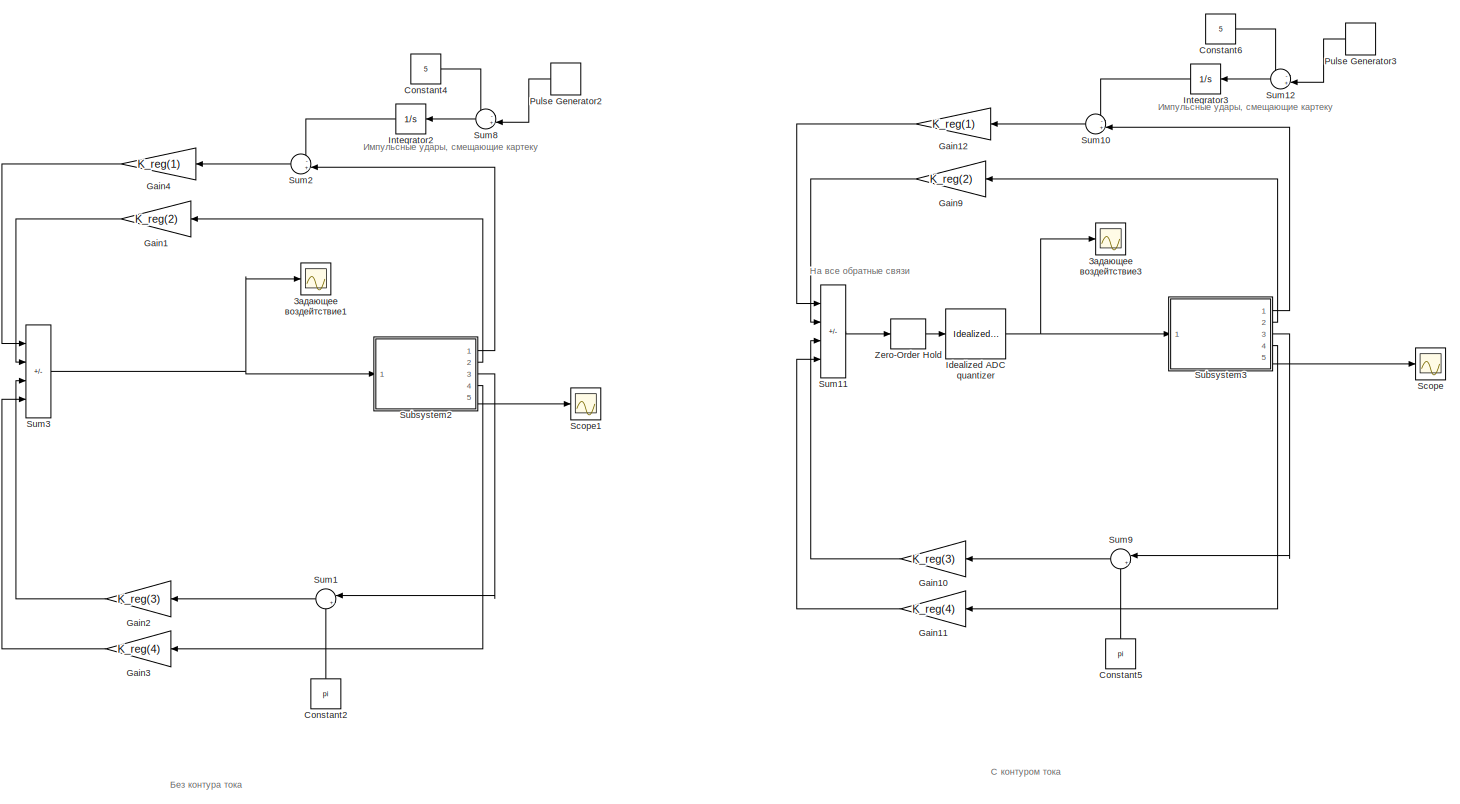
[diagram: root canvas - part 1/2, left side, full height]
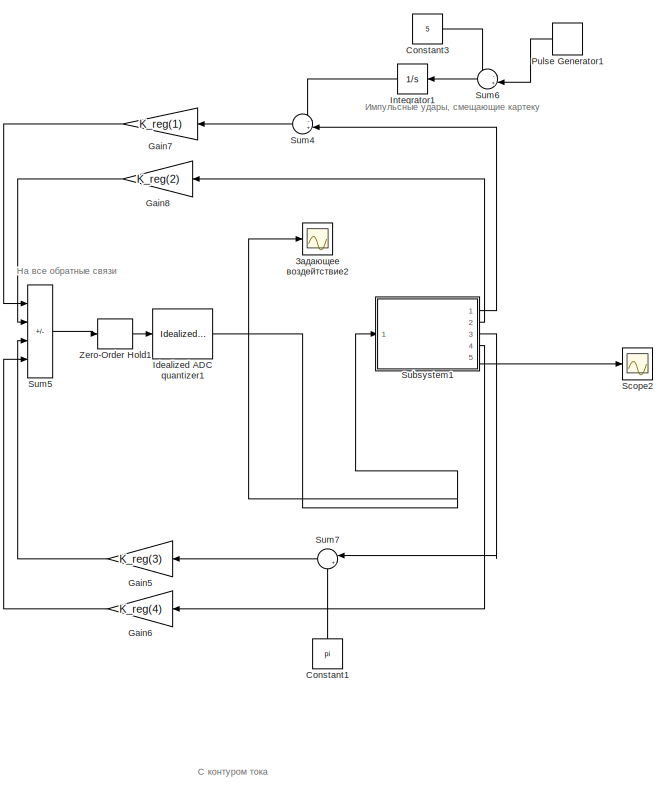
[diagram: root canvas - part 2/2, right side, full height]
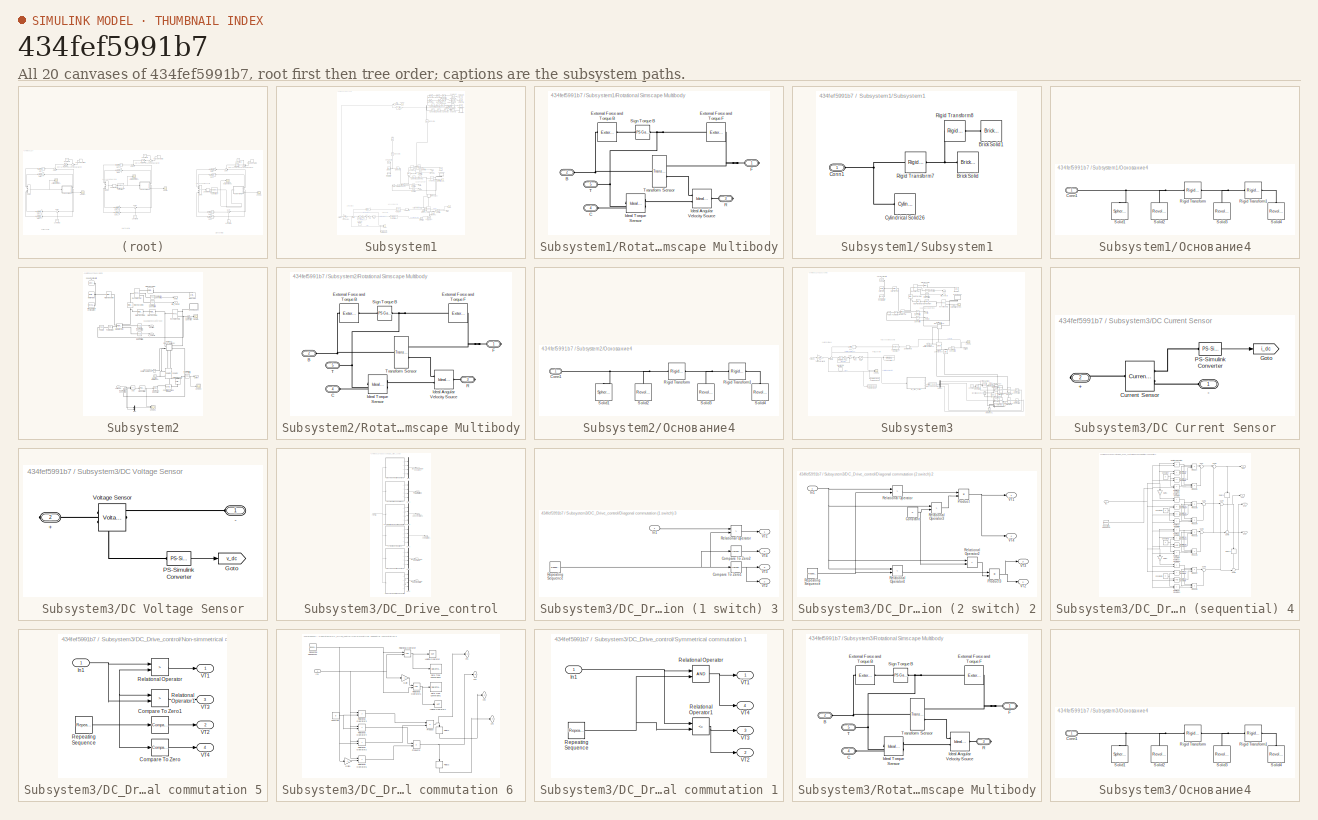
[diagram: thumbnail index - all 20 canvases of the model, root first then tree order]
MODEL slx_434fef5991b7
KIND model
CONFIG AbsTol = auto
CONFIG EnableMultiTasking = on
CONFIG FixedStep = 1e-4
CONFIG InitFcn = run('balancing_in_one_place_code.m');
CONFIG MaxStep = 1e-3
CONFIG MinStep = auto
CONFIG RelTol = 1e-3
CONFIG SampleTimeConstraint = Unconstrained
CONFIG SolverName = ode23s
CONFIG StartTime = 0.0
CONFIG StopTime = 5
BLOCK [Constant] Constant1
  NameLocation = right
  Value = pi
BLOCK [Constant] Constant2
  Commented = on
  NameLocation = right
  Value = pi
BLOCK [Constant] Constant3
  Value = 5
BLOCK [Constant] Constant4
  Commented = on
  Value = 5
BLOCK [Constant] Constant5
  NameLocation = right
  Value = pi
BLOCK [Constant] Constant6
  Commented = on
  Value = 5
BLOCK [Gain] Gain1
  Commented = on
  Gain = K_reg(2)
  NameLocation = top
BLOCK [Gain] Gain10
  Gain = K_reg(3)
  NameLocation = top
BLOCK [Gain] Gain11
  Gain = K_reg(4)
  NameLocation = top
BLOCK [Gain] Gain12
  Gain = K_reg(1)
  NameLocation = top
BLOCK [Gain] Gain2
  Commented = on
  Gain = K_reg(3)
  NameLocation = top
BLOCK [Gain] Gain3
  Commented = on
  Gain = K_reg(4)
  NameLocation = top
BLOCK [Gain] Gain4
  Commented = on
  Gain = K_reg(1)
  NameLocation = top
BLOCK [Gain] Gain5
  Gain = K_reg(3)
  NameLocation = top
BLOCK [Gain] Gain6
  Gain = K_reg(4)
  NameLocation = top
BLOCK [Gain] Gain7
  Gain = K_reg(1)
  NameLocation = top
BLOCK [Gain] Gain8
  Gain = K_reg(2)
  NameLocation = top
BLOCK [Gain] Gain9
  Gain = K_reg(2)
  NameLocation = top
BLOCK [Reference] Idealized ADC quantizer  REF=simulink_extras/Additional
Discrete/Idealized ADC quantizer
  AttributesFormatString = (settings: %<NumberOfConverterBits>-bit converter\nVmin: %<Vmin>, Vmax: %<Vmax>)
  Commented = through
  Ports = [1, 1]
  SourceBlock = simulink_extras/Additional\nDiscrete/Idealized ADC quantizer
  SourceProductBaseCode = SL
  SourceType = IdealADC
BLOCK [Reference] Idealized ADC quantizer1  REF=simulink_extras/Additional
Discrete/Idealized ADC quantizer
  AttributesFormatString = (settings: %<NumberOfConverterBits>-bit converter\nVmin: %<Vmin>, Vmax: %<Vmax>)
  Ports = [1, 1]
  SourceBlock = simulink_extras/Additional\nDiscrete/Idealized ADC quantizer
  SourceProductBaseCode = SL
  SourceType = IdealADC
BLOCK [Integrator] Integrator1
  LimitOutput = on
  LowerSaturationLimit = -10
  NameLocation = top
  Ports = [1, 1]
  UpperSaturationLimit = 10
BLOCK [Integrator] Integrator2
  Commented = on
  LimitOutput = on
  LowerSaturationLimit = -3
  NameLocation = top
  Ports = [1, 1]
  UpperSaturationLimit = 3
BLOCK [Integrator] Integrator3
  Commented = on
  LimitOutput = on
  LowerSaturationLimit = -10
  NameLocation = top
  Ports = [1, 1]
  UpperSaturationLimit = 10
BLOCK [DiscretePulseGenerator] Pulse Generator1
  Amplitude = 10
  Period = 10
  Ports = [0, 1]
  PulseType = Time based
  PulseWidth = 50
BLOCK [DiscretePulseGenerator] Pulse Generator2
  Amplitude = 10
  Commented = on
  Period = 10
  Ports = [0, 1]
  PulseType = Time based
  PulseWidth = 50
BLOCK [DiscretePulseGenerator] Pulse Generator3
  Amplitude = 10
  Commented = on
  Period = 10
  Ports = [0, 1]
  PulseType = Time based
  PulseWidth = 50
BLOCK [Scope] Scope
  Floating = off
  NumInputPorts = 1
  Ports = [1]
  ScopeSpecificationString = Simulink.scopes.TimeScopeBlockCfg('CurrentConfiguration', extmgr.ConfigurationSet(extmgr.Configuration('Core','General UI',true),extmgr.Configuration('Core','Source UI',true),extmgr.Configuration('Sources','WiredSimulink',true,'DataLoggingVariableName','ScopeData2'),extmgr.Configuration('Visuals','Time Domain',true),extmgr.Configuration('Tools','Plot Navigation',true),extmgr.Configuration('Tools',...<+40ch>
BLOCK [Scope] Scope1
  Commented = on
  Floating = off
  NumInputPorts = 1
  Ports = [1]
  ScopeSpecificationString = Simulink.scopes.TimeScopeBlockCfg('CurrentConfiguration', extmgr.ConfigurationSet(extmgr.Configuration('Core','General UI',true),extmgr.Configuration('Core','Source UI',true),extmgr.Configuration('Sources','WiredSimulink',true,'DataLoggingVariableName','ScopeData5'),extmgr.Configuration('Visuals','Time Domain',true),extmgr.Configuration('Tools','Plot Navigation',true),extmgr.Configuration('Tools',...<+40ch>
BLOCK [Scope] Scope2
  Floating = off
  NumInputPorts = 1
  Ports = [1]
  ScopeSpecificationString = Simulink.scopes.TimeScopeBlockCfg('CurrentConfiguration', extmgr.ConfigurationSet(extmgr.Configuration('Core','General UI',true),extmgr.Configuration('Core','Source UI',true),extmgr.Configuration('Sources','WiredSimulink',true,'DataLoggingVariableName','ScopeData1'),extmgr.Configuration('Visuals','Time Domain',true),extmgr.Configuration('Tools','Plot Navigation',true),extmgr.Configuration('Tools',...<+40ch>
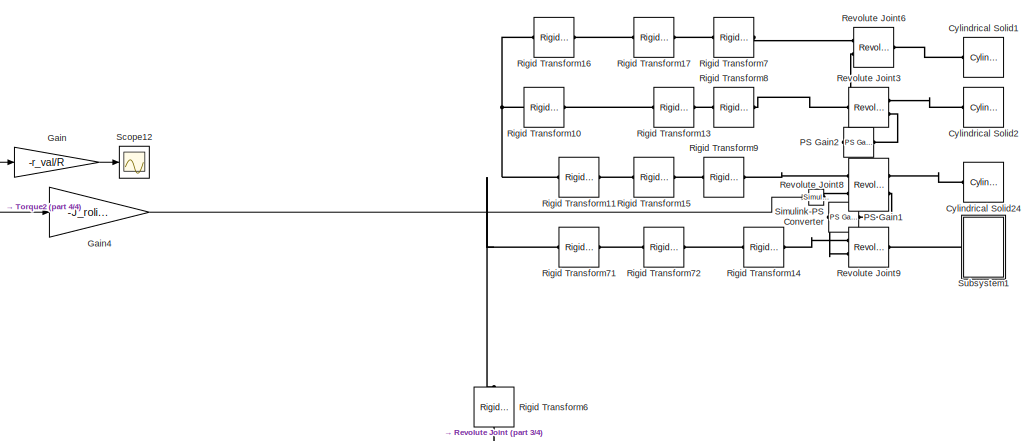
[diagram: Subsystem1 - part 1/4, top right region]
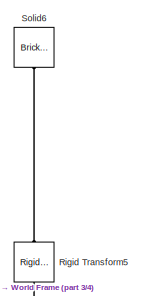
[diagram: Subsystem1 - part 2/4, central region]
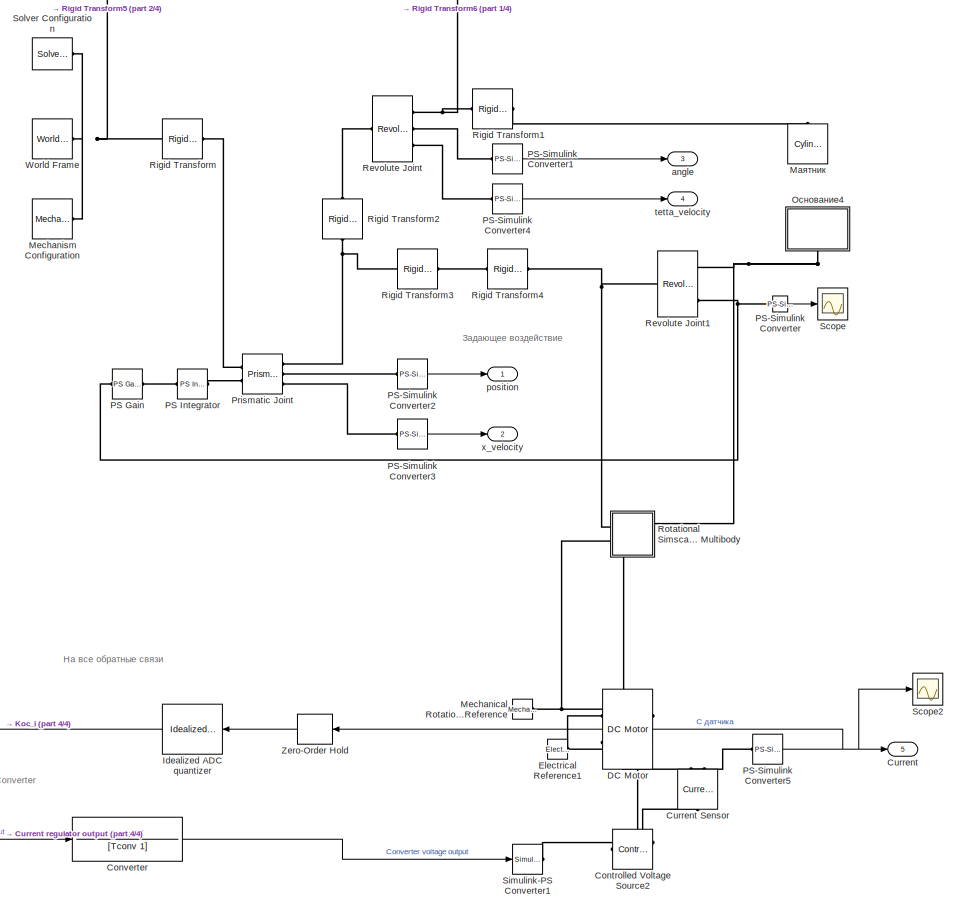
[diagram: Subsystem1 - part 3/4, bottom center region]
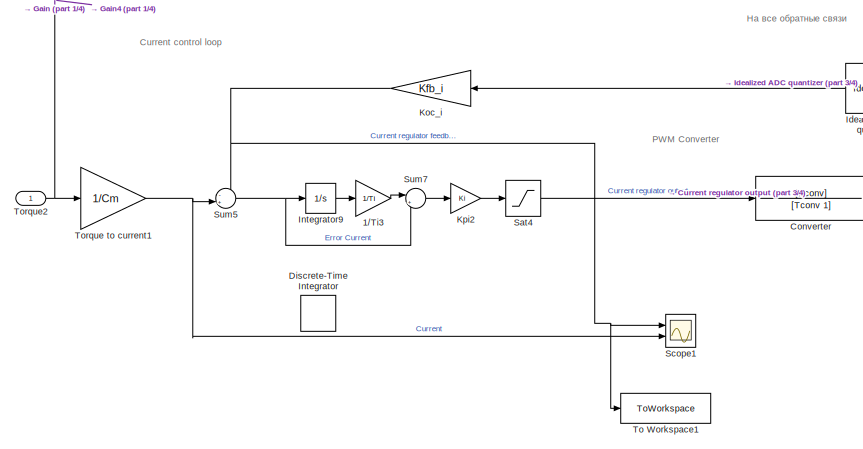
[diagram: Subsystem1 - part 4/4, bottom left region]
BLOCK [SubSystem] Subsystem1
  Ports = [1, 5]
  RequestExecContextInheritance = off
BLOCK [Gain] Subsystem1/1//Ti3
  Gain = 1/Ti
  NameLocation = top
BLOCK [Reference] Subsystem1/Controlled Voltage Source2  REF=fl_lib/Electrical/Electrical Sources/Controlled Voltage
Source
  NameLocation = top
  Ports = [0, 0, 0, 0, 0, 1, 2]
  SourceBlock = fl_lib/Electrical/Electrical Sources/Controlled Voltage\nSource
  SourceProductBaseCode = SS
  SourceType = Controlled Voltage\nSource
BLOCK [TransferFcn] Subsystem1/Converter
  Denominator = [Tconv 1]
  Numerator = [Kconv]
BLOCK [Outport] Subsystem1/Current
  Port = 5
  VectorParamsAs1DForOutWhenUnconnected = off
BLOCK [Reference] Subsystem1/Current Sensor  REF=fl_lib/Electrical/Electrical Sensors/Current Sensor
  NameLocation = right
  Ports = [0, 0, 0, 0, 0, 1, 2]
  SourceBlock = fl_lib/Electrical/Electrical Sensors/Current Sensor
  SourceProductBaseCode = SS
  SourceType = Current Sensor
BLOCK [Reference] Subsystem1/Cylindrical Solid1  REF=sm_lib/Body Elements/Cylindrical Solid
  NameLocation = top
  Ports = [0, 0, 0, 0, 0, 0, 1]
  SourceBlock = sm_lib/Body Elements/Cylindrical Solid
  SourceProductBaseCode = MS
  SourceType = Cylindrical Solid
BLOCK [Reference] Subsystem1/Cylindrical Solid2  REF=sm_lib/Body Elements/Cylindrical Solid
  NameLocation = top
  Ports = [0, 0, 0, 0, 0, 0, 1]
  SourceBlock = sm_lib/Body Elements/Cylindrical Solid
  SourceProductBaseCode = MS
  SourceType = Cylindrical Solid
BLOCK [Reference] Subsystem1/Cylindrical Solid24  REF=sm_lib/Body Elements/Cylindrical Solid
  NameLocation = top
  Ports = [0, 0, 0, 0, 0, 0, 1]
  SourceBlock = sm_lib/Body Elements/Cylindrical Solid
  SourceProductBaseCode = MS
  SourceType = Cylindrical Solid
BLOCK [Reference] Subsystem1/DC Motor  REF=ee_lib/Electromechanical/Brushed Motors/DC Motor
  NameLocation = top
  Ports = [0, 0, 0, 0, 0, 2, 2]
  SourceBlock = ee_lib/Electromechanical/Brushed Motors/DC Motor
  SourceProductBaseCode = PS
  SourceType = DC Motor
BLOCK [DiscreteIntegrator] Subsystem1/Discrete-Time Integrator
  Commented = on
  ICPrevOutput = DiscIntNeverNeededParam
  ICPrevScaledInput = DiscIntNeverNeededParam
  InitialConditionSetting = Auto
  Ports = [1, 1]
  SampleTime = -1
BLOCK [Reference] Subsystem1/Electrical Reference1  REF=fl_lib/Electrical/Electrical Elements/Electrical Reference
  Ports = [0, 0, 0, 0, 0, 1]
  SourceBlock = fl_lib/Electrical/Electrical Elements/Electrical Reference
  SourceProductBaseCode = SS
  SourceType = Electrical Reference
BLOCK [Gain] Subsystem1/Gain
  Gain = -r_val/R
BLOCK [Gain] Subsystem1/Gain4
  Gain = -J_rolik/J_sphere
BLOCK [Reference] Subsystem1/Idealized ADC quantizer  REF=simulink_extras/Additional
Discrete/Idealized ADC quantizer
  AttributesFormatString = (settings: %<NumberOfConverterBits>-bit converter\nVmin: %<Vmin>, Vmax: %<Vmax>)
  Commented = through
  NameLocation = top
  Ports = [1, 1]
  SourceBlock = simulink_extras/Additional\nDiscrete/Idealized ADC quantizer
  SourceProductBaseCode = SL
  SourceType = IdealADC
BLOCK [Integrator] Subsystem1/Integrator9
  LimitOutput = on
  LowerSaturationLimit = -Klship/Ki*Ti
  Ports = [1, 1]
  UpperSaturationLimit = Klship/Ki*Ti
BLOCK [Gain] Subsystem1/Koc_i
  Gain = Kfb_i
BLOCK [Gain] Subsystem1/Kpi2
  Gain = Ki
  NameLocation = top
BLOCK [Reference] Subsystem1/Mechanical Rotational Reference  REF=fl_lib/Mechanical/Rotational Elements/Mechanical
Rotational Reference
  NameLocation = top
  Ports = [0, 0, 0, 0, 0, 1]
  SourceBlock = fl_lib/Mechanical/Rotational Elements/Mechanical\nRotational Reference
  SourceProductBaseCode = SS
  SourceType = Mechanical\nRotational Reference
BLOCK [Reference] Subsystem1/Mechanism Configuration  REF=sm_lib/Utilities/Mechanism
Configuration
  Ports = [0, 0, 0, 0, 0, 0, 1]
  SourceBlock = sm_lib/Utilities/Mechanism\nConfiguration
  SourceProductBaseCode = MS
  SourceType = Mechanism\nConfiguration
BLOCK [Reference] Subsystem1/PS Gain  REF=fl_ps_legacy_lib/Legacy Physical
Signals/Functions/PS Gain
  Ports = [0, 0, 0, 0, 0, 1, 1]
  SourceBlock = fl_ps_legacy_lib/Legacy Physical\nSignals/Functions/PS Gain
  SourceProductBaseCode = SS
  SourceType = PS Gain
BLOCK [Reference] Subsystem1/PS Gain1  REF=fl_lib/Physical Signals/Functions/PS Gain
  Ports = [0, 0, 0, 0, 0, 1, 1]
  SourceBlock = fl_lib/Physical Signals/Functions/PS Gain
  SourceProductBaseCode = SS
  SourceType = PS Gain
BLOCK [Reference] Subsystem1/PS Gain2  REF=fl_lib/Physical Signals/Functions/PS Gain
  Ports = [0, 0, 0, 0, 0, 1, 1]
  SourceBlock = fl_lib/Physical Signals/Functions/PS Gain
  SourceProductBaseCode = SS
  SourceType = PS Gain
BLOCK [Reference] Subsystem1/PS Integrator  REF=fl_ps_legacy_lib/Legacy Physical
Signals/Linear Operators/PS Integrator
  Ports = [0, 0, 0, 0, 0, 1, 1]
  SourceBlock = fl_ps_legacy_lib/Legacy Physical\nSignals/Linear Operators/PS Integrator
  SourceProductBaseCode = SS
  SourceType = PS Integrator
BLOCK [Reference] Subsystem1/PS-Simulink Converter  REF=nesl_utility/PS-Simulink
Converter
  Ports = [0, 1, 0, 0, 0, 1]
  SourceBlock = nesl_utility/PS-Simulink\nConverter
  SourceProductBaseCode = PW,SS
  SourceType = PS-Simulink\nConverter
BLOCK [Reference] Subsystem1/PS-Simulink Converter1  REF=nesl_utility/PS-Simulink
Converter
  Ports = [0, 1, 0, 0, 0, 1]
  SourceBlock = nesl_utility/PS-Simulink\nConverter
  SourceProductBaseCode = PW,SS
  SourceType = PS-Simulink\nConverter
BLOCK [Reference] Subsystem1/PS-Simulink Converter2  REF=nesl_utility/PS-Simulink
Converter
  Ports = [0, 1, 0, 0, 0, 1]
  SourceBlock = nesl_utility/PS-Simulink\nConverter
  SourceProductBaseCode = PW,SS
  SourceType = PS-Simulink\nConverter
BLOCK [Reference] Subsystem1/PS-Simulink Converter3  REF=nesl_utility/PS-Simulink
Converter
  Ports = [0, 1, 0, 0, 0, 1]
  SourceBlock = nesl_utility/PS-Simulink\nConverter
  SourceProductBaseCode = PW,SS
  SourceType = PS-Simulink\nConverter
BLOCK [Reference] Subsystem1/PS-Simulink Converter4  REF=nesl_utility/PS-Simulink
Converter
  Ports = [0, 1, 0, 0, 0, 1]
  SourceBlock = nesl_utility/PS-Simulink\nConverter
  SourceProductBaseCode = PW,SS
  SourceType = PS-Simulink\nConverter
BLOCK [Reference] Subsystem1/PS-Simulink Converter5  REF=nesl_utility/PS-Simulink
Converter
  Ports = [0, 1, 0, 0, 0, 1]
  SourceBlock = nesl_utility/PS-Simulink\nConverter
  SourceProductBaseCode = SS
  SourceType = PS-Simulink\nConverter
BLOCK [Reference] Subsystem1/Prismatic Joint  REF=sm_lib/Joints/Prismatic
Joint
  Ports = [0, 0, 0, 0, 0, 2, 3]
  SourceBlock = sm_lib/Joints/Prismatic\nJoint
  SourceProductBaseCode = MS
  SourceType = Prismatic\nJoint
BLOCK [Reference] Subsystem1/Revolute Joint  REF=sm_lib/Joints/Revolute Joint
  Ports = [0, 0, 0, 0, 0, 1, 3]
  SourceBlock = sm_lib/Joints/Revolute Joint
  SourceProductBaseCode = MS
  SourceType = Revolute Joint
BLOCK [Reference] Subsystem1/Revolute Joint1  REF=sm_lib/Joints/Revolute Joint
  Ports = [0, 0, 0, 0, 0, 1, 3]
  SourceBlock = sm_lib/Joints/Revolute Joint
  SourceProductBaseCode = MS
  SourceType = Revolute Joint
BLOCK [Reference] Subsystem1/Revolute Joint3  REF=sm_lib/Joints/Revolute Joint
  Ports = [0, 0, 0, 0, 0, 1, 2]
  SourceBlock = sm_lib/Joints/Revolute Joint
  SourceProductBaseCode = MS
  SourceType = Revolute Joint
BLOCK [Reference] Subsystem1/Revolute Joint6  REF=sm_lib/Joints/Revolute Joint
  Ports = [0, 0, 0, 0, 0, 2, 1]
  SourceBlock = sm_lib/Joints/Revolute Joint
  SourceProductBaseCode = MS
  SourceType = Revolute Joint
BLOCK [Reference] Subsystem1/Revolute Joint8  REF=sm_lib/Joints/Revolute Joint
  Ports = [0, 0, 0, 0, 0, 2, 2]
  SourceBlock = sm_lib/Joints/Revolute Joint
  SourceProductBaseCode = MS
  SourceType = Revolute Joint
BLOCK [Reference] Subsystem1/Revolute Joint9  REF=sm_lib/Joints/Revolute Joint
  Ports = [0, 0, 0, 0, 0, 2, 1]
  SourceBlock = sm_lib/Joints/Revolute Joint
  SourceProductBaseCode = MS
  SourceType = Revolute Joint
BLOCK [Reference] Subsystem1/Rigid Transform  REF=sm_lib/Frames and
Transforms/Rigid
Transform
  Ports = [0, 0, 0, 0, 0, 1, 1]
  SourceBlock = sm_lib/Frames and\nTransforms/Rigid\nTransform
  SourceProductBaseCode = MS
  SourceType = Rigid\nTransform
BLOCK [Reference] Subsystem1/Rigid Transform1  REF=sm_lib/Frames and
Transforms/Rigid
Transform
  Ports = [0, 0, 0, 0, 0, 1, 1]
  SourceBlock = sm_lib/Frames and\nTransforms/Rigid\nTransform
  SourceProductBaseCode = MS
  SourceType = Rigid\nTransform
BLOCK [Reference] Subsystem1/Rigid Transform10  REF=sm_lib/Frames and
Transforms/Rigid
Transform
  Ports = [0, 0, 0, 0, 0, 1, 1]
  SourceBlock = sm_lib/Frames and\nTransforms/Rigid\nTransform
  SourceProductBaseCode = MS
  SourceType = Rigid\nTransform
BLOCK [Reference] Subsystem1/Rigid Transform11  REF=sm_lib/Frames and
Transforms/Rigid
Transform
  Ports = [0, 0, 0, 0, 0, 1, 1]
  SourceBlock = sm_lib/Frames and\nTransforms/Rigid\nTransform
  SourceProductBaseCode = MS
  SourceType = Rigid\nTransform
BLOCK [Reference] Subsystem1/Rigid Transform13  REF=sm_lib/Frames and
Transforms/Rigid
Transform
  Ports = [0, 0, 0, 0, 0, 1, 1]
  SourceBlock = sm_lib/Frames and\nTransforms/Rigid\nTransform
  SourceProductBaseCode = MS
  SourceType = Rigid\nTransform
BLOCK [Reference] Subsystem1/Rigid Transform14  REF=sm_lib/Frames and
Transforms/Rigid
Transform
  Ports = [0, 0, 0, 0, 0, 1, 1]
  SourceBlock = sm_lib/Frames and\nTransforms/Rigid\nTransform
  SourceProductBaseCode = MS
  SourceType = Rigid\nTransform
BLOCK [Reference] Subsystem1/Rigid Transform15  REF=sm_lib/Frames and
Transforms/Rigid
Transform
  Ports = [0, 0, 0, 0, 0, 1, 1]
  SourceBlock = sm_lib/Frames and\nTransforms/Rigid\nTransform
  SourceProductBaseCode = MS
  SourceType = Rigid\nTransform
BLOCK [Reference] Subsystem1/Rigid Transform16  REF=sm_lib/Frames and
Transforms/Rigid
Transform
  Ports = [0, 0, 0, 0, 0, 1, 1]
  SourceBlock = sm_lib/Frames and\nTransforms/Rigid\nTransform
  SourceProductBaseCode = MS
  SourceType = Rigid\nTransform
BLOCK [Reference] Subsystem1/Rigid Transform17  REF=sm_lib/Frames and
Transforms/Rigid
Transform
  Ports = [0, 0, 0, 0, 0, 1, 1]
  SourceBlock = sm_lib/Frames and\nTransforms/Rigid\nTransform
  SourceProductBaseCode = MS
  SourceType = Rigid\nTransform
BLOCK [Reference] Subsystem1/Rigid Transform2  REF=sm_lib/Frames and
Transforms/Rigid
Transform
  NameLocation = right
  Ports = [0, 0, 0, 0, 0, 1, 1]
  SourceBlock = sm_lib/Frames and\nTransforms/Rigid\nTransform
  SourceProductBaseCode = MS
  SourceType = Rigid\nTransform
BLOCK [Reference] Subsystem1/Rigid Transform3  REF=sm_lib/Frames and
Transforms/Rigid
Transform
  Ports = [0, 0, 0, 0, 0, 1, 1]
  SourceBlock = sm_lib/Frames and\nTransforms/Rigid\nTransform
  SourceProductBaseCode = MS
  SourceType = Rigid\nTransform
BLOCK [Reference] Subsystem1/Rigid Transform4  REF=sm_lib/Frames and
Transforms/Rigid
Transform
  Ports = [0, 0, 0, 0, 0, 1, 1]
  SourceBlock = sm_lib/Frames and\nTransforms/Rigid\nTransform
  SourceProductBaseCode = MS
  SourceType = Rigid\nTransform
BLOCK [Reference] Subsystem1/Rigid Transform5  REF=sm_lib/Frames and
Transforms/Rigid
Transform
  NameLocation = left
  Ports = [0, 0, 0, 0, 0, 1, 1]
  SourceBlock = sm_lib/Frames and\nTransforms/Rigid\nTransform
  SourceProductBaseCode = MS
  SourceType = Rigid\nTransform
BLOCK [Reference] Subsystem1/Rigid Transform6  REF=sm_lib/Frames and
Transforms/Rigid
Transform
  NameLocation = left
  Ports = [0, 0, 0, 0, 0, 1, 1]
  SourceBlock = sm_lib/Frames and\nTransforms/Rigid\nTransform
  SourceProductBaseCode = MS
  SourceType = Rigid\nTransform
BLOCK [Reference] Subsystem1/Rigid Transform7  REF=sm_lib/Frames and
Transforms/Rigid
Transform
  Ports = [0, 0, 0, 0, 0, 1, 1]
  SourceBlock = sm_lib/Frames and\nTransforms/Rigid\nTransform
  SourceProductBaseCode = MS
  SourceType = Rigid\nTransform
BLOCK [Reference] Subsystem1/Rigid Transform71  REF=sm_lib/Frames and
Transforms/Rigid
Transform
  Ports = [0, 0, 0, 0, 0, 1, 1]
  SourceBlock = sm_lib/Frames and\nTransforms/Rigid\nTransform
  SourceProductBaseCode = MS
  SourceType = Rigid\nTransform
BLOCK [Reference] Subsystem1/Rigid Transform72  REF=sm_lib/Frames and
Transforms/Rigid
Transform
  Ports = [0, 0, 0, 0, 0, 1, 1]
  SourceBlock = sm_lib/Frames and\nTransforms/Rigid\nTransform
  SourceProductBaseCode = MS
  SourceType = Rigid\nTransform
BLOCK [Reference] Subsystem1/Rigid Transform8  REF=sm_lib/Frames and
Transforms/Rigid
Transform
  Ports = [0, 0, 0, 0, 0, 1, 1]
  SourceBlock = sm_lib/Frames and\nTransforms/Rigid\nTransform
  SourceProductBaseCode = MS
  SourceType = Rigid\nTransform
BLOCK [Reference] Subsystem1/Rigid Transform9  REF=sm_lib/Frames and
Transforms/Rigid
Transform
  Ports = [0, 0, 0, 0, 0, 1, 1]
  SourceBlock = sm_lib/Frames and\nTransforms/Rigid\nTransform
  SourceProductBaseCode = MS
  SourceType = Rigid\nTransform
BLOCK [SubSystem] Subsystem1/Rotational Simscape Multibody
  Ports = [0, 0, 0, 0, 0, 2, 3]
  RequestExecContextInheritance = off
BLOCK [PMIOPort] Subsystem1/Rotational Simscape Multibody/B
  Port = 2
  Side = Left
BLOCK [PMIOPort] Subsystem1/Rotational Simscape Multibody/C
  Port = 4
  Side = Left
BLOCK [Reference] Subsystem1/Rotational Simscape Multibody/External Force and Torque B  REF=sm_lib/Forces and
Torques/External Force
and Torque
  NameLocation = top
  Ports = [0, 0, 0, 0, 0, 1, 1]
  SourceBlock = sm_lib/Forces and\nTorques/External Force\nand Torque
  SourceProductBaseCode = MS
  SourceType = External Force\nand Torque
BLOCK [Reference] Subsystem1/Rotational Simscape Multibody/External Force and Torque F  REF=sm_lib/Forces and
Torques/External Force
and Torque
  NameLocation = top
  Ports = [0, 0, 0, 0, 0, 1, 1]
  SourceBlock = sm_lib/Forces and\nTorques/External Force\nand Torque
  SourceProductBaseCode = MS
  SourceType = External Force\nand Torque
BLOCK [PMIOPort] Subsystem1/Rotational Simscape Multibody/F
  Side = Right
BLOCK [Reference] Subsystem1/Rotational Simscape Multibody/Ideal Angular Velocity Source  REF=fl_lib/Mechanical/Mechanical Sources/Ideal Angular
Velocity Source
  Ports = [0, 0, 0, 0, 0, 1, 2]
  SourceBlock = fl_lib/Mechanical/Mechanical Sources/Ideal Angular\nVelocity Source
  SourceProductBaseCode = SS
  SourceType = Ideal Angular\nVelocity Source
BLOCK [Reference] Subsystem1/Rotational Simscape Multibody/Ideal Torque Sensor  REF=fl_lib/Mechanical/Mechanical Sensors/Ideal Torque Sensor
  Ports = [0, 0, 0, 0, 0, 1, 2]
  SourceBlock = fl_lib/Mechanical/Mechanical Sensors/Ideal Torque Sensor
  SourceProductBaseCode = SS
  SourceType = Ideal Torque Sensor
BLOCK [PMIOPort] Subsystem1/Rotational Simscape Multibody/R
  Port = 3
  Side = Right
BLOCK [Reference] Subsystem1/Rotational Simscape Multibody/Sign Torque B  REF=fl_ps_legacy_lib/Legacy Physical
Signals/Functions/PS Gain
  Ports = [0, 0, 0, 0, 0, 1, 1]
  SourceBlock = fl_ps_legacy_lib/Legacy Physical\nSignals/Functions/PS Gain
  SourceProductBaseCode = SS
  SourceType = PS Gain
BLOCK [PMIOPort] Subsystem1/Rotational Simscape Multibody/T
  Port = 5
  Side = Right
BLOCK [Reference] Subsystem1/Rotational Simscape Multibody/Transform Sensor  REF=sm_lib/Frames and
Transforms/Transform
Sensor
  Ports = [0, 0, 0, 0, 0, 1, 2]
  SourceBlock = sm_lib/Frames and\nTransforms/Transform\nSensor
  SourceProductBaseCode = MS
  SourceType = Transform\nSensor
BLOCK [Saturate] Subsystem1/Sat4
  LowerLimit = -Klship
  UpperLimit = Klship
BLOCK [Scope] Subsystem1/Scope
  Floating = off
  NumInputPorts = 1
  Ports = [1]
  ScopeSpecificationString = Simulink.scopes.TimeScopeBlockCfg('CurrentConfiguration', extmgr.ConfigurationSet(extmgr.Configuration('Core','General UI',true),extmgr.Configuration('Core','Source UI',true),extmgr.Configuration('Sources','WiredSimulink',true,'DataLoggingVariableName','ScopeData6'),extmgr.Configuration('Visuals','Time Domain',true,'SerializedDisplays',{struct('MinYLimReal','-11.09884','MaxYLimReal','23.47735','YL...<+1442ch>  <repeated x3 — deduplicated; at blocks: Scope>
BLOCK [Scope] Subsystem1/Scope1
  Floating = off
  NumInputPorts = 2
  Ports = [2]
  ScopeSpecificationString = Simulink.scopes.TimeScopeBlockCfg('CurrentConfiguration', extmgr.ConfigurationSet(extmgr.Configuration('Core','General UI',true),extmgr.Configuration('Core','Source UI',true),extmgr.Configuration('Sources','WiredSimulink',true,'DataLoggingVariableName','ScopeData1'),extmgr.Configuration('Visuals','Time Domain',true,'SerializedDisplays',{struct('MinYLimReal','-2.38887','MaxYLimReal','15.66556','YLa...<+1514ch>
BLOCK [Scope] Subsystem1/Scope12
  Floating = off
  NumInputPorts = 1
  Ports = [1]
  ScopeSpecificationString = Simulink.scopes.TimeScopeBlockCfg('CurrentConfiguration', extmgr.ConfigurationSet(extmgr.Configuration('Core','General UI',true),extmgr.Configuration('Core','Source UI',true),extmgr.Configuration('Sources','WiredSimulink',true,'DataLoggingVariableName','ScopeData1'),extmgr.Configuration('Visuals','Time Domain',true),extmgr.Configuration('Tools','Plot Navigation',true),extmgr.Configuration('Tools',...<+40ch>
BLOCK [Scope] Subsystem1/Scope2
  Floating = off
  NumInputPorts = 1
  Ports = [1]
  ScopeSpecificationString = Simulink.scopes.TimeScopeBlockCfg('CurrentConfiguration', extmgr.ConfigurationSet(extmgr.Configuration('Core','General UI',true),extmgr.Configuration('Core','Source UI',true),extmgr.Configuration('Sources','WiredSimulink',true,'DataLoggingVariableName','ScopeData1'),extmgr.Configuration('Visuals','Time Domain',true,'SerializedDisplays',{struct('MinYLimReal','-0.68155','MaxYLimReal','3.50374','YLab...<+1745ch>
BLOCK [Reference] Subsystem1/Simulink-PS Converter  REF=nesl_utility/Simulink-PS
Converter
  Ports = [1, 0, 0, 0, 0, 0, 1]
  SourceBlock = nesl_utility/Simulink-PS\nConverter
  SourceProductBaseCode = PW,SS
  SourceType = Simulink-PS\nConverter
BLOCK [Reference] Subsystem1/Simulink-PS Converter1  REF=nesl_utility/Simulink-PS
Converter
  Ports = [1, 0, 0, 0, 0, 0, 1]
  SourceBlock = nesl_utility/Simulink-PS\nConverter
  SourceProductBaseCode = SS
  SourceType = Simulink-PS\nConverter
BLOCK [Reference] Subsystem1/Solid6  REF=sm_lib/Body Elements/Brick Solid
  NameLocation = left
  Ports = [0, 0, 0, 0, 0, 0, 1]
  SourceBlock = sm_lib/Body Elements/Brick Solid
  SourceProductBaseCode = MS
  SourceType = Brick Solid
BLOCK [Reference] Subsystem1/Solver Configuration  REF=nesl_utility/Solver
Configuration
  Ports = [0, 0, 0, 0, 0, 0, 1]
  SourceBlock = nesl_utility/Solver\nConfiguration
  SourceProductBaseCode = PW,SS
  SourceType = Solver\nConfiguration
BLOCK [SubSystem] Subsystem1/Subsystem1
  Ports = [0, 0, 0, 0, 0, 1]
  RequestExecContextInheritance = off
BLOCK [Reference] Subsystem1/Subsystem1/Brick Solid  REF=sm_lib/Body Elements/Brick Solid
  NameLocation = top
  Ports = [0, 0, 0, 0, 0, 0, 1]
  SourceBlock = sm_lib/Body Elements/Brick Solid
  SourceProductBaseCode = MS
  SourceType = Brick Solid
BLOCK [Reference] Subsystem1/Subsystem1/Brick Solid1  REF=sm_lib/Body Elements/Brick Solid
  NameLocation = top
  Ports = [0, 0, 0, 0, 0, 0, 1]
  SourceBlock = sm_lib/Body Elements/Brick Solid
  SourceProductBaseCode = MS
  SourceType = Brick Solid
BLOCK [PMIOPort] Subsystem1/Subsystem1/Conn1
  Side = Left
BLOCK [Reference] Subsystem1/Subsystem1/Cylindrical Solid26  REF=sm_lib/Body Elements/Cylindrical Solid
  NameLocation = top
  Ports = [0, 0, 0, 0, 0, 0, 1]
  SourceBlock = sm_lib/Body Elements/Cylindrical Solid
  SourceProductBaseCode = MS
  SourceType = Cylindrical Solid
BLOCK [Reference] Subsystem1/Subsystem1/Rigid Transform7  REF=sm_lib/Frames and
Transforms/Rigid
Transform
  Ports = [0, 0, 0, 0, 0, 1, 1]
  SourceBlock = sm_lib/Frames and\nTransforms/Rigid\nTransform
  SourceProductBaseCode = MS
  SourceType = Rigid\nTransform
BLOCK [Reference] Subsystem1/Subsystem1/Rigid Transform8  REF=sm_lib/Frames and
Transforms/Rigid
Transform
  Ports = [0, 0, 0, 0, 0, 1, 1]
  SourceBlock = sm_lib/Frames and\nTransforms/Rigid\nTransform
  SourceProductBaseCode = MS
  SourceType = Rigid\nTransform
BLOCK [Sum] Subsystem1/Sum5
  Inputs = -+|
  Ports = [2, 1]
BLOCK [Sum] Subsystem1/Sum7
  Inputs = |++
  NameLocation = top
  Ports = [2, 1]
BLOCK [ToWorkspace] Subsystem1/To Workspace1
  FixptAsFi = on
  MaxDataPoints = inf
  Ports = [1]
  SampleTime = -1
  SaveFormat = Timeseries
  VariableName = I_feadback_simple
BLOCK [Gain] Subsystem1/Torque to current1
  Gain = 1/Cm
  NameLocation = top
BLOCK [Inport] Subsystem1/Torque2
BLOCK [Reference] Subsystem1/World Frame  REF=sm_lib/Frames and
Transforms/World Frame
  Ports = [0, 0, 0, 0, 0, 0, 1]
  SourceBlock = sm_lib/Frames and\nTransforms/World Frame
  SourceProductBaseCode = MS
  SourceType = World Frame
BLOCK [ZeroOrderHold] Subsystem1/Zero-Order Hold
  Commented = through
  NameLocation = top
  SampleTime = 1/(20e3)
BLOCK [Outport] Subsystem1/angle
  Port = 3
  VectorParamsAs1DForOutWhenUnconnected = off
BLOCK [Outport] Subsystem1/position
  VectorParamsAs1DForOutWhenUnconnected = off
BLOCK [Outport] Subsystem1/tetta_velocity 
  Port = 4
  VectorParamsAs1DForOutWhenUnconnected = off
BLOCK [Outport] Subsystem1/x_velocity 
  Port = 2
  VectorParamsAs1DForOutWhenUnconnected = off
BLOCK [Reference] Subsystem1/Маятник  REF=sm_lib/Body Elements/Cylindrical Solid
  NameLocation = right
  Ports = [0, 0, 0, 0, 0, 0, 1]
  SourceBlock = sm_lib/Body Elements/Cylindrical Solid
  SourceProductBaseCode = MS
  SourceType = Cylindrical Solid
BLOCK [SubSystem] Subsystem1/Основание4
  NameLocation = right
  Ports = [0, 0, 0, 0, 0, 1]
  RequestExecContextInheritance = off
BLOCK [PMIOPort] Subsystem1/Основание4/Conn1
  Side = Left
BLOCK [Reference] Subsystem1/Основание4/Rigid Transform  REF=sm_lib/Frames and
Transforms/Rigid
Transform
  Ports = [0, 0, 0, 0, 0, 1, 1]
  SourceBlock = sm_lib/Frames and\nTransforms/Rigid\nTransform
  SourceProductBaseCode = MS
  SourceType = Rigid\nTransform
BLOCK [Reference] Subsystem1/Основание4/Rigid Transform1  REF=sm_lib/Frames and
Transforms/Rigid
Transform
  Ports = [0, 0, 0, 0, 0, 1, 1]
  SourceBlock = sm_lib/Frames and\nTransforms/Rigid\nTransform
  SourceProductBaseCode = MS
  SourceType = Rigid\nTransform
BLOCK [Reference] Subsystem1/Основание4/Solid1  REF=sm_lib/Body Elements/Spherical Solid
  NameLocation = right
  Ports = [0, 0, 0, 0, 0, 0, 1]
  SourceBlock = sm_lib/Body Elements/Spherical Solid
  SourceProductBaseCode = MS
  SourceType = Spherical Solid
BLOCK [Reference] Subsystem1/Основание4/Solid2  REF=sm_lib/Body Elements/Revolved Solid
  NameLocation = right
  Ports = [0, 0, 0, 0, 0, 0, 1]
  SourceBlock = sm_lib/Body Elements/Revolved Solid
  SourceProductBaseCode = MS
  SourceType = Revolved Solid
BLOCK [Reference] Subsystem1/Основание4/Solid3  REF=sm_lib/Body Elements/Revolved Solid
  NameLocation = right
  Ports = [0, 0, 0, 0, 0, 0, 1]
  SourceBlock = sm_lib/Body Elements/Revolved Solid
  SourceProductBaseCode = MS
  SourceType = Revolved Solid
BLOCK [Reference] Subsystem1/Основание4/Solid4  REF=sm_lib/Body Elements/Revolved Solid
  NameLocation = right
  Ports = [0, 0, 0, 0, 0, 0, 1]
  SourceBlock = sm_lib/Body Elements/Revolved Solid
  SourceProductBaseCode = MS
  SourceType = Revolved Solid
BLOCK [SubSystem] Subsystem2
  Commented = on
  Ports = [1, 5]
  RequestExecContextInheritance = off
BLOCK [Sum] Subsystem2/Add
  IconShape = rectangular
  Inputs = +-
  Ports = [2, 1]
BLOCK [Reference] Subsystem2/Controlled Voltage Source  REF=fl_lib/Electrical/Electrical Sources/Controlled Voltage
Source
  NameLocation = top
  Ports = [0, 0, 0, 0, 0, 1, 2]
  SourceBlock = fl_lib/Electrical/Electrical Sources/Controlled Voltage\nSource
  SourceProductBaseCode = SS
  SourceType = Controlled Voltage\nSource
BLOCK [Outport] Subsystem2/Current
  Port = 5
  VectorParamsAs1DForOutWhenUnconnected = off
BLOCK [Reference] Subsystem2/Current Sensor  REF=fl_lib/Electrical/Electrical Sensors/Current Sensor
  NameLocation = right
  Ports = [0, 0, 0, 0, 0, 1, 2]
  SourceBlock = fl_lib/Electrical/Electrical Sensors/Current Sensor
  SourceProductBaseCode = SS
  SourceType = Current Sensor
BLOCK [Reference] Subsystem2/DC Motor  REF=ee_lib/Electromechanical/Brushed Motors/DC Motor
  NameLocation = top
  Ports = [0, 0, 0, 0, 0, 2, 2]
  SourceBlock = ee_lib/Electromechanical/Brushed Motors/DC Motor
  SourceProductBaseCode = PS
  SourceType = DC Motor
BLOCK [Reference] Subsystem2/Electrical Reference  REF=fl_lib/Electrical/Electrical Elements/Electrical Reference
  Ports = [0, 0, 0, 0, 0, 1]
  SourceBlock = fl_lib/Electrical/Electrical Elements/Electrical Reference
  SourceProductBaseCode = SS
  SourceType = Electrical Reference
BLOCK [Reference] Subsystem2/Mechanical Rotational Reference  REF=fl_lib/Mechanical/Rotational Elements/Mechanical
Rotational Reference
  NameLocation = top
  Ports = [0, 0, 0, 0, 0, 1]
  SourceBlock = fl_lib/Mechanical/Rotational Elements/Mechanical\nRotational Reference
  SourceProductBaseCode = SS
  SourceType = Mechanical\nRotational Reference
BLOCK [Reference] Subsystem2/Mechanism Configuration  REF=sm_lib/Utilities/Mechanism
Configuration
  Ports = [0, 0, 0, 0, 0, 0, 1]
  SourceBlock = sm_lib/Utilities/Mechanism\nConfiguration
  SourceProductBaseCode = MS
  SourceType = Mechanism\nConfiguration
BLOCK [Mux] Subsystem2/Mux
  DisplayOption = bar
  Inputs = 2
  Ports = [2, 1]
BLOCK [Reference] Subsystem2/PID Controller  REF=pid_lib/PID Controller
  Ports = [1, 1]
  SourceBlock = pid_lib/PID Controller
  SourceProductBaseCode = SL
  SourceType = PID 1dof
BLOCK [Reference] Subsystem2/PS Gain  REF=fl_ps_legacy_lib/Legacy Physical
Signals/Functions/PS Gain
  Ports = [0, 0, 0, 0, 0, 1, 1]
  SourceBlock = fl_ps_legacy_lib/Legacy Physical\nSignals/Functions/PS Gain
  SourceProductBaseCode = SS
  SourceType = PS Gain
BLOCK [Reference] Subsystem2/PS Integrator  REF=fl_ps_legacy_lib/Legacy Physical
Signals/Linear Operators/PS Integrator
  Ports = [0, 0, 0, 0, 0, 1, 1]
  SourceBlock = fl_ps_legacy_lib/Legacy Physical\nSignals/Linear Operators/PS Integrator
  SourceProductBaseCode = SS
  SourceType = PS Integrator
BLOCK [Reference] Subsystem2/PS-Simulink Converter  REF=nesl_utility/PS-Simulink
Converter
  Ports = [0, 1, 0, 0, 0, 1]
  SourceBlock = nesl_utility/PS-Simulink\nConverter
  SourceProductBaseCode = PW,SS
  SourceType = PS-Simulink\nConverter
BLOCK [Reference] Subsystem2/PS-Simulink Converter1  REF=nesl_utility/PS-Simulink
Converter
  Ports = [0, 1, 0, 0, 0, 1]
  SourceBlock = nesl_utility/PS-Simulink\nConverter
  SourceProductBaseCode = PW,SS
  SourceType = PS-Simulink\nConverter
BLOCK [Reference] Subsystem2/PS-Simulink Converter2  REF=nesl_utility/PS-Simulink
Converter
  Ports = [0, 1, 0, 0, 0, 1]
  SourceBlock = nesl_utility/PS-Simulink\nConverter
  SourceProductBaseCode = PW,SS
  SourceType = PS-Simulink\nConverter
BLOCK [Reference] Subsystem2/PS-Simulink Converter3  REF=nesl_utility/PS-Simulink
Converter
  Ports = [0, 1, 0, 0, 0, 1]
  SourceBlock = nesl_utility/PS-Simulink\nConverter
  SourceProductBaseCode = PW,SS
  SourceType = PS-Simulink\nConverter
BLOCK [Reference] Subsystem2/PS-Simulink Converter4  REF=nesl_utility/PS-Simulink
Converter
  Ports = [0, 1, 0, 0, 0, 1]
  SourceBlock = nesl_utility/PS-Simulink\nConverter
  SourceProductBaseCode = PW,SS
  SourceType = PS-Simulink\nConverter
BLOCK [Reference] Subsystem2/PS-Simulink Converter5  REF=nesl_utility/PS-Simulink
Converter
  Ports = [0, 1, 0, 0, 0, 1]
  SourceBlock = nesl_utility/PS-Simulink\nConverter
  SourceProductBaseCode = SS
  SourceType = PS-Simulink\nConverter
BLOCK [Reference] Subsystem2/PS-Simulink Converter6  REF=nesl_utility/PS-Simulink
Converter
  Ports = [0, 1, 0, 0, 0, 1]
  SourceBlock = nesl_utility/PS-Simulink\nConverter
  SourceProductBaseCode = PW,SS
  SourceType = PS-Simulink\nConverter
BLOCK [Reference] Subsystem2/Prismatic Joint  REF=sm_lib/Joints/Prismatic
Joint
  Ports = [0, 0, 0, 0, 0, 2, 3]
  SourceBlock = sm_lib/Joints/Prismatic\nJoint
  SourceProductBaseCode = MS
  SourceType = Prismatic\nJoint
BLOCK [Reference] Subsystem2/Revolute Joint  REF=sm_lib/Joints/Revolute Joint
  Ports = [0, 0, 0, 0, 0, 1, 3]
  SourceBlock = sm_lib/Joints/Revolute Joint
  SourceProductBaseCode = MS
  SourceType = Revolute Joint
BLOCK [Reference] Subsystem2/Revolute Joint1  REF=sm_lib/Joints/Revolute Joint
  Ports = [0, 0, 0, 0, 0, 1, 3]
  SourceBlock = sm_lib/Joints/Revolute Joint
  SourceProductBaseCode = MS
  SourceType = Revolute Joint
BLOCK [Reference] Subsystem2/Rigid Transform  REF=sm_lib/Frames and
Transforms/Rigid
Transform
  Ports = [0, 0, 0, 0, 0, 1, 1]
  SourceBlock = sm_lib/Frames and\nTransforms/Rigid\nTransform
  SourceProductBaseCode = MS
  SourceType = Rigid\nTransform
BLOCK [Reference] Subsystem2/Rigid Transform1  REF=sm_lib/Frames and
Transforms/Rigid
Transform
  Ports = [0, 0, 0, 0, 0, 1, 1]
  SourceBlock = sm_lib/Frames and\nTransforms/Rigid\nTransform
  SourceProductBaseCode = MS
  SourceType = Rigid\nTransform
BLOCK [Reference] Subsystem2/Rigid Transform2  REF=sm_lib/Frames and
Transforms/Rigid
Transform
  NameLocation = right
  Ports = [0, 0, 0, 0, 0, 1, 1]
  SourceBlock = sm_lib/Frames and\nTransforms/Rigid\nTransform
  SourceProductBaseCode = MS
  SourceType = Rigid\nTransform
BLOCK [Reference] Subsystem2/Rigid Transform3  REF=sm_lib/Frames and
Transforms/Rigid
Transform
  Ports = [0, 0, 0, 0, 0, 1, 1]
  SourceBlock = sm_lib/Frames and\nTransforms/Rigid\nTransform
  SourceProductBaseCode = MS
  SourceType = Rigid\nTransform
BLOCK [Reference] Subsystem2/Rigid Transform4  REF=sm_lib/Frames and
Transforms/Rigid
Transform
  Ports = [0, 0, 0, 0, 0, 1, 1]
  SourceBlock = sm_lib/Frames and\nTransforms/Rigid\nTransform
  SourceProductBaseCode = MS
  SourceType = Rigid\nTransform
BLOCK [SubSystem] Subsystem2/Rotational Simscape Multibody
  Ports = [0, 0, 0, 0, 0, 2, 3]
  RequestExecContextInheritance = off
BLOCK [PMIOPort] Subsystem2/Rotational Simscape Multibody/B
  Port = 2
  Side = Left
BLOCK [PMIOPort] Subsystem2/Rotational Simscape Multibody/C
  Port = 4
  Side = Left
BLOCK [Reference] Subsystem2/Rotational Simscape Multibody/External Force and Torque B  REF=sm_lib/Forces and
Torques/External Force
and Torque
  NameLocation = top
  Ports = [0, 0, 0, 0, 0, 1, 1]
  SourceBlock = sm_lib/Forces and\nTorques/External Force\nand Torque
  SourceProductBaseCode = MS
  SourceType = External Force\nand Torque
BLOCK [Reference] Subsystem2/Rotational Simscape Multibody/External Force and Torque F  REF=sm_lib/Forces and
Torques/External Force
and Torque
  NameLocation = top
  Ports = [0, 0, 0, 0, 0, 1, 1]
  SourceBlock = sm_lib/Forces and\nTorques/External Force\nand Torque
  SourceProductBaseCode = MS
  SourceType = External Force\nand Torque
BLOCK [PMIOPort] Subsystem2/Rotational Simscape Multibody/F
  Side = Right
BLOCK [Reference] Subsystem2/Rotational Simscape Multibody/Ideal Angular Velocity Source  REF=fl_lib/Mechanical/Mechanical Sources/Ideal Angular
Velocity Source
  Ports = [0, 0, 0, 0, 0, 1, 2]
  SourceBlock = fl_lib/Mechanical/Mechanical Sources/Ideal Angular\nVelocity Source
  SourceProductBaseCode = SS
  SourceType = Ideal Angular\nVelocity Source
BLOCK [Reference] Subsystem2/Rotational Simscape Multibody/Ideal Torque Sensor  REF=fl_lib/Mechanical/Mechanical Sensors/Ideal Torque Sensor
  Ports = [0, 0, 0, 0, 0, 1, 2]
  SourceBlock = fl_lib/Mechanical/Mechanical Sensors/Ideal Torque Sensor
  SourceProductBaseCode = SS
  SourceType = Ideal Torque Sensor
BLOCK [PMIOPort] Subsystem2/Rotational Simscape Multibody/R
  Port = 3
  Side = Right
BLOCK [Reference] Subsystem2/Rotational Simscape Multibody/Sign Torque B  REF=fl_ps_legacy_lib/Legacy Physical
Signals/Functions/PS Gain
  Ports = [0, 0, 0, 0, 0, 1, 1]
  SourceBlock = fl_ps_legacy_lib/Legacy Physical\nSignals/Functions/PS Gain
  SourceProductBaseCode = SS
  SourceType = PS Gain
BLOCK [PMIOPort] Subsystem2/Rotational Simscape Multibody/T
  Port = 5
  Side = Right
BLOCK [Reference] Subsystem2/Rotational Simscape Multibody/Transform Sensor  REF=sm_lib/Frames and
Transforms/Transform
Sensor
  Ports = [0, 0, 0, 0, 0, 1, 2]
  SourceBlock = sm_lib/Frames and\nTransforms/Transform\nSensor
  SourceProductBaseCode = MS
  SourceType = Transform\nSensor
BLOCK [Scope] Subsystem2/Scope
  Floating = off
  NumInputPorts = 1
  Ports = [1]
BLOCK [Scope] Subsystem2/Scope1
  Floating = off
  NumInputPorts = 2
  Ports = [2]
  ScopeSpecificationString = Simulink.scopes.TimeScopeBlockCfg('CurrentConfiguration', extmgr.ConfigurationSet(extmgr.Configuration('Core','General UI',true),extmgr.Configuration('Core','Source UI',true),extmgr.Configuration('Sources','WiredSimulink',true,'DataLoggingVariableName','ScopeData1'),extmgr.Configuration('Visuals','Time Domain',true,'SerializedDisplays',{struct('MinYLimReal','-2.79235','MaxYLimReal','13.64359','YLa...<+2091ch>
BLOCK [Scope] Subsystem2/Scope2
  Floating = off
  NumInputPorts = 1
  Ports = [1]
  ScopeSpecificationString = Simulink.scopes.TimeScopeBlockCfg('CurrentConfiguration', extmgr.ConfigurationSet(extmgr.Configuration('Core','General UI',true),extmgr.Configuration('Core','Source UI',true),extmgr.Configuration('Sources','WiredSimulink',true,'DataLoggingVariableName','ScopeData3'),extmgr.Configuration('Visuals','Time Domain',true,'SerializedDisplays',{struct('MinYLimReal','-0.51922','MaxYLimReal','2.48169','YLab...<+1435ch>
BLOCK [Reference] Subsystem2/Simulink-PS Converter  REF=nesl_utility/Simulink-PS
Converter
  Ports = [1, 0, 0, 0, 0, 0, 1]
  SourceBlock = nesl_utility/Simulink-PS\nConverter
  SourceProductBaseCode = SS
  SourceType = Simulink-PS\nConverter
BLOCK [Reference] Subsystem2/Solver Configuration  REF=nesl_utility/Solver
Configuration
  Ports = [0, 0, 0, 0, 0, 0, 1]
  SourceBlock = nesl_utility/Solver\nConfiguration
  SourceProductBaseCode = PW,SS
  SourceType = Solver\nConfiguration
BLOCK [Inport] Subsystem2/Torque2
BLOCK [Reference] Subsystem2/World Frame  REF=sm_lib/Frames and
Transforms/World Frame
  Ports = [0, 0, 0, 0, 0, 0, 1]
  SourceBlock = sm_lib/Frames and\nTransforms/World Frame
  SourceProductBaseCode = MS
  SourceType = World Frame
BLOCK [Outport] Subsystem2/angle
  Port = 3
  VectorParamsAs1DForOutWhenUnconnected = off
BLOCK [Outport] Subsystem2/position
  VectorParamsAs1DForOutWhenUnconnected = off
BLOCK [Outport] Subsystem2/tetta_velocity 
  Port = 4
  VectorParamsAs1DForOutWhenUnconnected = off
BLOCK [Outport] Subsystem2/x_velocity 
  Port = 2
  VectorParamsAs1DForOutWhenUnconnected = off
BLOCK [Reference] Subsystem2/Маятник  REF=sm_lib/Body Elements/Cylindrical Solid
  NameLocation = right
  Ports = [0, 0, 0, 0, 0, 0, 1]
  SourceBlock = sm_lib/Body Elements/Cylindrical Solid
  SourceProductBaseCode = MS
  SourceType = Cylindrical Solid
BLOCK [SubSystem] Subsystem2/Основание4
  NameLocation = right
  Ports = [0, 0, 0, 0, 0, 1]
  RequestExecContextInheritance = off
BLOCK [PMIOPort] Subsystem2/Основание4/Conn1
  Side = Left
BLOCK [Reference] Subsystem2/Основание4/Rigid Transform  REF=sm_lib/Frames and
Transforms/Rigid
Transform
  Ports = [0, 0, 0, 0, 0, 1, 1]
  SourceBlock = sm_lib/Frames and\nTransforms/Rigid\nTransform
  SourceProductBaseCode = MS
  SourceType = Rigid\nTransform
BLOCK [Reference] Subsystem2/Основание4/Rigid Transform1  REF=sm_lib/Frames and
Transforms/Rigid
Transform
  Ports = [0, 0, 0, 0, 0, 1, 1]
  SourceBlock = sm_lib/Frames and\nTransforms/Rigid\nTransform
  SourceProductBaseCode = MS
  SourceType = Rigid\nTransform
BLOCK [Reference] Subsystem2/Основание4/Solid1  REF=sm_lib/Body Elements/Spherical Solid
  NameLocation = right
  Ports = [0, 0, 0, 0, 0, 0, 1]
  SourceBlock = sm_lib/Body Elements/Spherical Solid
  SourceProductBaseCode = MS
  SourceType = Spherical Solid
BLOCK [Reference] Subsystem2/Основание4/Solid2  REF=sm_lib/Body Elements/Revolved Solid
  NameLocation = right
  Ports = [0, 0, 0, 0, 0, 0, 1]
  SourceBlock = sm_lib/Body Elements/Revolved Solid
  SourceProductBaseCode = MS
  SourceType = Revolved Solid
BLOCK [Reference] Subsystem2/Основание4/Solid3  REF=sm_lib/Body Elements/Revolved Solid
  NameLocation = right
  Ports = [0, 0, 0, 0, 0, 0, 1]
  SourceBlock = sm_lib/Body Elements/Revolved Solid
  SourceProductBaseCode = MS
  SourceType = Revolved Solid
BLOCK [Reference] Subsystem2/Основание4/Solid4  REF=sm_lib/Body Elements/Revolved Solid
  NameLocation = right
  Ports = [0, 0, 0, 0, 0, 0, 1]
  SourceBlock = sm_lib/Body Elements/Revolved Solid
  SourceProductBaseCode = MS
  SourceType = Revolved Solid
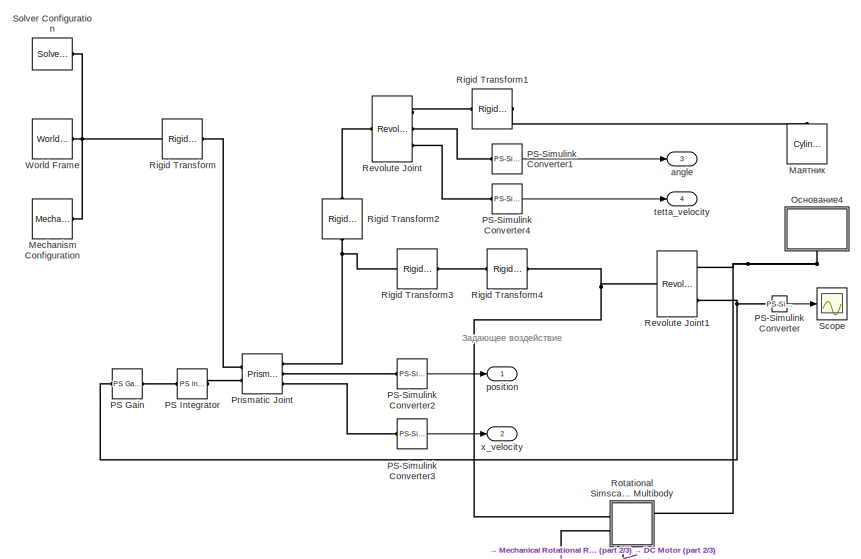
[diagram: Subsystem3 - part 1/3, top center region]
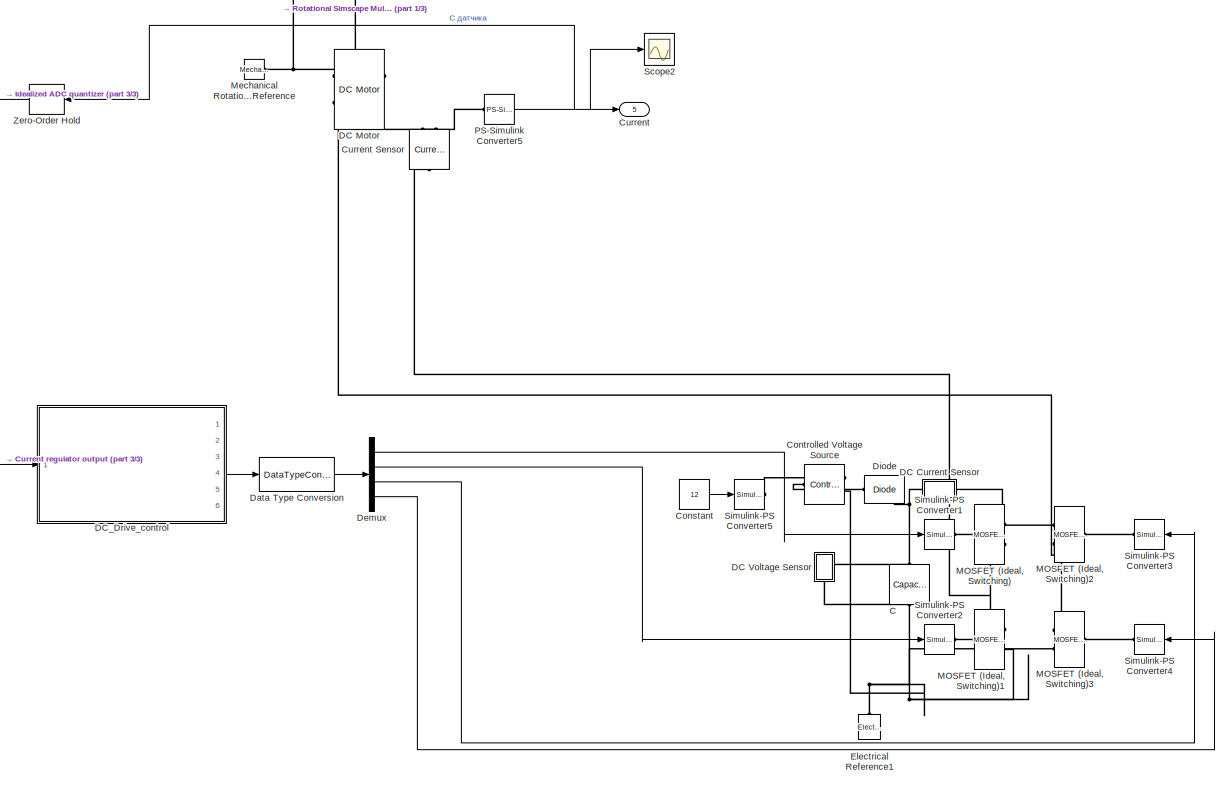
[diagram: Subsystem3 - part 2/3, bottom right region]
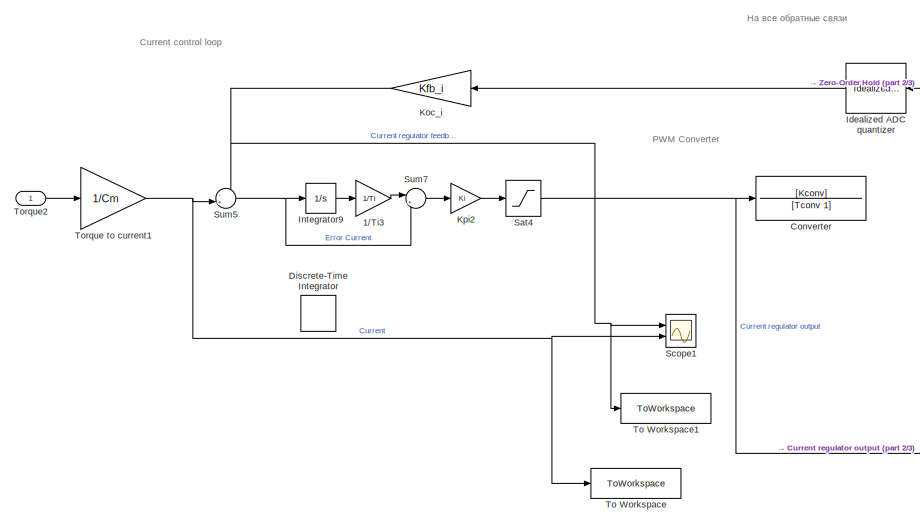
[diagram: Subsystem3 - part 3/3, middle left region]
BLOCK [SubSystem] Subsystem3
  Ports = [1, 5]
  RequestExecContextInheritance = off
BLOCK [Gain] Subsystem3/1//Ti3
  Gain = 1/Ti
  NameLocation = top
BLOCK [Reference] Subsystem3/C  REF=fl_lib/Electrical/Electrical Elements/Capacitor
  NameLocation = right
  Ports = [0, 0, 0, 0, 0, 1, 1]
  SourceBlock = fl_lib/Electrical/Electrical Elements/Capacitor
  SourceProductBaseCode = SS
  SourceType = Capacitor
BLOCK [Constant] Subsystem3/Constant
  Value = 12
BLOCK [Reference] Subsystem3/Controlled Voltage Source  REF=fl_lib/Electrical/Electrical Sources/Controlled Voltage
Source
  NameLocation = top
  Ports = [0, 0, 0, 0, 0, 1, 2]
  SourceBlock = fl_lib/Electrical/Electrical Sources/Controlled Voltage\nSource
  SourceProductBaseCode = SS
  SourceType = Controlled Voltage\nSource
BLOCK [TransferFcn] Subsystem3/Converter
  Denominator = [Tconv 1]
  Numerator = [Kconv]
BLOCK [Outport] Subsystem3/Current
  Port = 5
  VectorParamsAs1DForOutWhenUnconnected = off
BLOCK [Reference] Subsystem3/Current Sensor  REF=fl_lib/Electrical/Electrical Sensors/Current Sensor
  NameLocation = right
  Ports = [0, 0, 0, 0, 0, 1, 2]
  SourceBlock = fl_lib/Electrical/Electrical Sensors/Current Sensor
  SourceProductBaseCode = SS
  SourceType = Current Sensor
BLOCK [SubSystem] Subsystem3/DC Current Sensor
  Ports = [0, 0, 0, 0, 0, 1, 1]
  RequestExecContextInheritance = off
BLOCK [PMIOPort] Subsystem3/DC Current Sensor/+
  Port = 2
  Side = Right
BLOCK [PMIOPort] Subsystem3/DC Current Sensor/-
  Side = Left
BLOCK [Reference] Subsystem3/DC Current Sensor/Current Sensor  REF=fl_lib/Electrical/Electrical Sensors/Current Sensor
  Ports = [0, 0, 0, 0, 0, 1, 2]
  SourceBlock = fl_lib/Electrical/Electrical Sensors/Current Sensor
  SourceProductBaseCode = SS
  SourceType = Current Sensor
BLOCK [Goto] Subsystem3/DC Current Sensor/Goto
  GotoTag = i_dc
  TagVisibility = global
BLOCK [Reference] Subsystem3/DC Current Sensor/PS-Simulink Converter  REF=nesl_utility/PS-Simulink
Converter
  Ports = [0, 1, 0, 0, 0, 1]
  SourceBlock = nesl_utility/PS-Simulink\nConverter
  SourceProductBaseCode = PW,SS
  SourceType = PS-Simulink\nConverter
BLOCK [Reference] Subsystem3/DC Motor  REF=ee_lib/Electromechanical/Brushed Motors/DC Motor
  NameLocation = top
  Ports = [0, 0, 0, 0, 0, 2, 2]
  SourceBlock = ee_lib/Electromechanical/Brushed Motors/DC Motor
  SourceProductBaseCode = PS
  SourceType = DC Motor
BLOCK [SubSystem] Subsystem3/DC Voltage Sensor
  NameLocation = left
  Ports = [0, 0, 0, 0, 0, 1, 1]
  RequestExecContextInheritance = off
BLOCK [PMIOPort] Subsystem3/DC Voltage Sensor/+
  Port = 2
  Side = Right
BLOCK [PMIOPort] Subsystem3/DC Voltage Sensor/-
  Side = Left
BLOCK [Goto] Subsystem3/DC Voltage Sensor/Goto
  GotoTag = v_dc
  TagVisibility = global
BLOCK [Reference] Subsystem3/DC Voltage Sensor/PS-Simulink Converter  REF=nesl_utility/PS-Simulink
Converter
  Ports = [0, 1, 0, 0, 0, 1]
  SourceBlock = nesl_utility/PS-Simulink\nConverter
  SourceProductBaseCode = PW,SS
  SourceType = PS-Simulink\nConverter
BLOCK [Reference] Subsystem3/DC Voltage Sensor/Voltage Sensor  REF=fl_lib/Electrical/Electrical Sensors/Voltage Sensor
  Ports = [0, 0, 0, 0, 0, 1, 2]
  SourceBlock = fl_lib/Electrical/Electrical Sensors/Voltage Sensor
  SourceProductBaseCode = SS
  SourceType = Voltage Sensor
BLOCK [SubSystem] Subsystem3/DC_Drive_control
  Ports = [1, 6]
  RequestExecContextInheritance = off
BLOCK [SubSystem] Subsystem3/DC_Drive_control/Diagonal commutation (1 switch) 3
  Ports = [1, 4]
  RequestExecContextInheritance = off
BLOCK [Reference] Subsystem3/DC_Drive_control/Diagonal commutation (1 switch) 3/Compare To Zero1  REF=simulink/Logic and Bit
Operations/Compare
To Zero
  Ports = [1, 1]
  SourceBlock = simulink/Logic and Bit\nOperations/Compare\nTo Zero
  SourceProductBaseCode = SL
  SourceType = Compare To Zero
BLOCK [Reference] Subsystem3/DC_Drive_control/Diagonal commutation (1 switch) 3/Compare To Zero2  REF=simulink/Logic and Bit
Operations/Compare
To Zero
  Ports = [1, 1]
  SourceBlock = simulink/Logic and Bit\nOperations/Compare\nTo Zero
  SourceProductBaseCode = SL
  SourceType = Compare To Zero
BLOCK [Inport] Subsystem3/DC_Drive_control/Diagonal commutation (1 switch) 3/In1
BLOCK [RelationalOperator] Subsystem3/DC_Drive_control/Diagonal commutation (1 switch) 3/Relational Operator
  InputSameDT = off
  Operator = >
  OutDataTypeStr = boolean
  Ports = [2, 1]
BLOCK [Reference] Subsystem3/DC_Drive_control/Diagonal commutation (1 switch) 3/Repeating Sequence  REF=simulink/Sources/Repeating
Sequence
  Ports = [0, 1]
  SourceBlock = simulink/Sources/Repeating\nSequence
  SourceProductBaseCode = SL
  SourceType = Repeating table
BLOCK [Outport] Subsystem3/DC_Drive_control/Diagonal commutation (1 switch) 3/VT1
  VectorParamsAs1DForOutWhenUnconnected = off
BLOCK [Outport] Subsystem3/DC_Drive_control/Diagonal commutation (1 switch) 3/VT2
  Port = 2
  VectorParamsAs1DForOutWhenUnconnected = off
BLOCK [Outport] Subsystem3/DC_Drive_control/Diagonal commutation (1 switch) 3/VT3
  Port = 3
  VectorParamsAs1DForOutWhenUnconnected = off
BLOCK [Outport] Subsystem3/DC_Drive_control/Diagonal commutation (1 switch) 3/VT4
  Port = 4
  VectorParamsAs1DForOutWhenUnconnected = off
BLOCK [Outport] Subsystem3/DC_Drive_control/Diagonal commutation (1 switch) 5
  Port = 2
  VectorParamsAs1DForOutWhenUnconnected = off
BLOCK [Outport] Subsystem3/DC_Drive_control/Diagonal commutation (2 switch) 1
  VectorParamsAs1DForOutWhenUnconnected = off
BLOCK [SubSystem] Subsystem3/DC_Drive_control/Diagonal commutation (2 switch) 2
  Ports = [1, 4]
  RequestExecContextInheritance = off
BLOCK [Constant] Subsystem3/DC_Drive_control/Diagonal commutation (2 switch) 2/Constant
  Value = 0
BLOCK [Inport] Subsystem3/DC_Drive_control/Diagonal commutation (2 switch) 2/In1
BLOCK [Product] Subsystem3/DC_Drive_control/Diagonal commutation (2 switch) 2/Product
  Ports = [2, 1]
BLOCK [Product] Subsystem3/DC_Drive_control/Diagonal commutation (2 switch) 2/Product3
  Ports = [2, 1]
BLOCK [RelationalOperator] Subsystem3/DC_Drive_control/Diagonal commutation (2 switch) 2/Relational Operator
  InputSameDT = off
  Operator = >
  OutDataTypeStr = boolean
  Ports = [2, 1]
BLOCK [RelationalOperator] Subsystem3/DC_Drive_control/Diagonal commutation (2 switch) 2/Relational Operator2
  InputSameDT = off
  Operator = <
  OutDataTypeStr = boolean
  Ports = [2, 1]
BLOCK [RelationalOperator] Subsystem3/DC_Drive_control/Diagonal commutation (2 switch) 2/Relational Operator3
  InputSameDT = off
  Operator = >
  OutDataTypeStr = boolean
  Ports = [2, 1]
BLOCK [RelationalOperator] Subsystem3/DC_Drive_control/Diagonal commutation (2 switch) 2/Relational Operator4
  InputSameDT = off
  Operator = <
  OutDataTypeStr = boolean
  Ports = [2, 1]
BLOCK [Reference] Subsystem3/DC_Drive_control/Diagonal commutation (2 switch) 2/Repeating Sequence  REF=simulink/Sources/Repeating
Sequence
  Ports = [0, 1]
  SourceBlock = simulink/Sources/Repeating\nSequence
  SourceProductBaseCode = SL
  SourceType = Repeating table
BLOCK [Outport] Subsystem3/DC_Drive_control/Diagonal commutation (2 switch) 2/VT1
  VectorParamsAs1DForOutWhenUnconnected = off
BLOCK [Outport] Subsystem3/DC_Drive_control/Diagonal commutation (2 switch) 2/VT2
  Port = 2
  VectorParamsAs1DForOutWhenUnconnected = off
BLOCK [Outport] Subsystem3/DC_Drive_control/Diagonal commutation (2 switch) 2/VT3
  Port = 3
  VectorParamsAs1DForOutWhenUnconnected = off
BLOCK [Outport] Subsystem3/DC_Drive_control/Diagonal commutation (2 switch) 2/VT4
  Port = 4
  VectorParamsAs1DForOutWhenUnconnected = off
BLOCK [SubSystem] Subsystem3/DC_Drive_control/Diagonal commutation (sequential) 4
  Ports = [1, 4]
  RequestExecContextInheritance = off
BLOCK [Constant] Subsystem3/DC_Drive_control/Diagonal commutation (sequential) 4/Constant
  Value = 0
BLOCK [Constant] Subsystem3/DC_Drive_control/Diagonal commutation (sequential) 4/Constant1
  Value = 0
BLOCK [Constant] Subsystem3/DC_Drive_control/Diagonal commutation (sequential) 4/Constant2
  Value = 0
BLOCK [Constant] Subsystem3/DC_Drive_control/Diagonal commutation (sequential) 4/Constant3
  Value = 0
BLOCK [Gain] Subsystem3/DC_Drive_control/Diagonal commutation (sequential) 4/Gain1
  Gain = -1
  NameLocation = left
BLOCK [Gain] Subsystem3/DC_Drive_control/Diagonal commutation (sequential) 4/Gain2
  Gain = -1
  NameLocation = left
BLOCK [Inport] Subsystem3/DC_Drive_control/Diagonal commutation (sequential) 4/In1
BLOCK [Product] Subsystem3/DC_Drive_control/Diagonal commutation (sequential) 4/Product
  Inputs = 3
  Ports = [3, 1]
BLOCK [Product] Subsystem3/DC_Drive_control/Diagonal commutation (sequential) 4/Product1
  Inputs = 3
  Ports = [3, 1]
BLOCK [Product] Subsystem3/DC_Drive_control/Diagonal commutation (sequential) 4/Product2
  Inputs = 3
  Ports = [3, 1]
BLOCK [Product] Subsystem3/DC_Drive_control/Diagonal commutation (sequential) 4/Product3
  Inputs = 3
  Ports = [3, 1]
BLOCK [Product] Subsystem3/DC_Drive_control/Diagonal commutation (sequential) 4/Product4
  Inputs = 3
  Ports = [3, 1]
BLOCK [Product] Subsystem3/DC_Drive_control/Diagonal commutation (sequential) 4/Product5
  Inputs = 3
  Ports = [3, 1]
BLOCK [Product] Subsystem3/DC_Drive_control/Diagonal commutation (sequential) 4/Product6
  Inputs = 3
  Ports = [3, 1]
BLOCK [Product] Subsystem3/DC_Drive_control/Diagonal commutation (sequential) 4/Product7
  Inputs = 3
  Ports = [3, 1]
BLOCK [RelationalOperator] Subsystem3/DC_Drive_control/Diagonal commutation (sequential) 4/Relational Operator
  InputSameDT = off
  Operator = >
  OutDataTypeStr = boolean
  Ports = [2, 1]
BLOCK [RelationalOperator] Subsystem3/DC_Drive_control/Diagonal commutation (sequential) 4/Relational Operator1
  InputSameDT = off
  Operator = >
  OutDataTypeStr = boolean
  Ports = [2, 1]
BLOCK [RelationalOperator] Subsystem3/DC_Drive_control/Diagonal commutation (sequential) 4/Relational Operator10
  InputSameDT = off
  OutDataTypeStr = boolean
  Ports = [2, 1]
BLOCK [RelationalOperator] Subsystem3/DC_Drive_control/Diagonal commutation (sequential) 4/Relational Operator11
  InputSameDT = off
  Operator = <=
  OutDataTypeStr = boolean
  Ports = [2, 1]
BLOCK [RelationalOperator] Subsystem3/DC_Drive_control/Diagonal commutation (sequential) 4/Relational Operator12
  InputSameDT = off
  Operator = <
  OutDataTypeStr = boolean
  Ports = [2, 1]
BLOCK [RelationalOperator] Subsystem3/DC_Drive_control/Diagonal commutation (sequential) 4/Relational Operator13
  InputSameDT = off
  Operator = <
  OutDataTypeStr = boolean
  Ports = [2, 1]
BLOCK [RelationalOperator] Subsystem3/DC_Drive_control/Diagonal commutation (sequential) 4/Relational Operator14
  InputSameDT = off
  Operator = >
  OutDataTypeStr = boolean
  Ports = [2, 1]
BLOCK [RelationalOperator] Subsystem3/DC_Drive_control/Diagonal commutation (sequential) 4/Relational Operator15
  InputSameDT = off
  Operator = <
  OutDataTypeStr = boolean
  Ports = [2, 1]
BLOCK [RelationalOperator] Subsystem3/DC_Drive_control/Diagonal commutation (sequential) 4/Relational Operator2
  InputSameDT = off
  Operator = >
  OutDataTypeStr = boolean
  Ports = [2, 1]
BLOCK [RelationalOperator] Subsystem3/DC_Drive_control/Diagonal commutation (sequential) 4/Relational Operator3
  InputSameDT = off
  Operator = <=
  OutDataTypeStr = boolean
  Ports = [2, 1]
BLOCK [RelationalOperator] Subsystem3/DC_Drive_control/Diagonal commutation (sequential) 4/Relational Operator4
  InputSameDT = off
  Operator = <
  OutDataTypeStr = boolean
  Ports = [2, 1]
BLOCK [RelationalOperator] Subsystem3/DC_Drive_control/Diagonal commutation (sequential) 4/Relational Operator5
  InputSameDT = off
  OutDataTypeStr = boolean
  Ports = [2, 1]
BLOCK [RelationalOperator] Subsystem3/DC_Drive_control/Diagonal commutation (sequential) 4/Relational Operator6
  InputSameDT = off
  Operator = >
  OutDataTypeStr = boolean
  Ports = [2, 1]
BLOCK [RelationalOperator] Subsystem3/DC_Drive_control/Diagonal commutation (sequential) 4/Relational Operator7
  InputSameDT = off
  Operator = <
  OutDataTypeStr = boolean
  Ports = [2, 1]
BLOCK [RelationalOperator] Subsystem3/DC_Drive_control/Diagonal commutation (sequential) 4/Relational Operator8
  InputSameDT = off
  Operator = >
  OutDataTypeStr = boolean
  Ports = [2, 1]
BLOCK [RelationalOperator] Subsystem3/DC_Drive_control/Diagonal commutation (sequential) 4/Relational Operator9
  InputSameDT = off
  Operator = <
  OutDataTypeStr = boolean
  Ports = [2, 1]
BLOCK [Relay] Subsystem3/DC_Drive_control/Diagonal commutation (sequential) 4/Relay1
  NameLocation = left
  OffOutputValue = 1
  OffSwitchValue = 0.001
  OnOutputValue = 0
  OnSwitchValue = 0.999
BLOCK [Relay] Subsystem3/DC_Drive_control/Diagonal commutation (sequential) 4/Relay4
  NameLocation = left
  OffOutputValue = 1
  OffSwitchValue = 0.001
  OnOutputValue = 0
  OnSwitchValue = 0.999
BLOCK [Reference] Subsystem3/DC_Drive_control/Diagonal commutation (sequential) 4/Repeating Sequence  REF=simulink/Sources/Repeating
Sequence
  Ports = [0, 1]
  SourceBlock = simulink/Sources/Repeating\nSequence
  SourceProductBaseCode = SL
  SourceType = Repeating table
BLOCK [Sum] Subsystem3/DC_Drive_control/Diagonal commutation (sequential) 4/Sum
  Inputs = |++
  Ports = [2, 1]
BLOCK [Sum] Subsystem3/DC_Drive_control/Diagonal commutation (sequential) 4/Sum1
  Inputs = |++
  Ports = [2, 1]
BLOCK [Sum] Subsystem3/DC_Drive_control/Diagonal commutation (sequential) 4/Sum2
  Inputs = |++
  Ports = [2, 1]
BLOCK [Sum] Subsystem3/DC_Drive_control/Diagonal commutation (sequential) 4/Sum3
  Inputs = |++
  Ports = [2, 1]
BLOCK [Sum] Subsystem3/DC_Drive_control/Diagonal commutation (sequential) 4/Sum4
  Inputs = |++
  Ports = [2, 1]
BLOCK [Sum] Subsystem3/DC_Drive_control/Diagonal commutation (sequential) 4/Sum5
  Inputs = ++|
  Ports = [2, 1]
BLOCK [Sum] Subsystem3/DC_Drive_control/Diagonal commutation (sequential) 4/Sum6
  Inputs = ++|
  Ports = [2, 1]
BLOCK [Sum] Subsystem3/DC_Drive_control/Diagonal commutation (sequential) 4/Sum7
  Inputs = |++
  Ports = [2, 1]
BLOCK [Outport] Subsystem3/DC_Drive_control/Diagonal commutation (sequential) 4/VT1
  VectorParamsAs1DForOutWhenUnconnected = off
BLOCK [Outport] Subsystem3/DC_Drive_control/Diagonal commutation (sequential) 4/VT2
  Port = 2
  VectorParamsAs1DForOutWhenUnconnected = off
BLOCK [Outport] Subsystem3/DC_Drive_control/Diagonal commutation (sequential) 4/VT3
  Port = 3
  VectorParamsAs1DForOutWhenUnconnected = off
BLOCK [Outport] Subsystem3/DC_Drive_control/Diagonal commutation (sequential) 4/VT4
  Port = 4
  VectorParamsAs1DForOutWhenUnconnected = off
BLOCK [Outport] Subsystem3/DC_Drive_control/Diagonal commutation (sequential) 6
  Port = 3
  VectorParamsAs1DForOutWhenUnconnected = off
BLOCK [Mux] Subsystem3/DC_Drive_control/Mux
  DisplayOption = bar
  Ports = [4, 1]
BLOCK [Mux] Subsystem3/DC_Drive_control/Mux1
  DisplayOption = bar
  Ports = [4, 1]
BLOCK [Mux] Subsystem3/DC_Drive_control/Mux2
  DisplayOption = bar
  Ports = [4, 1]
BLOCK [Mux] Subsystem3/DC_Drive_control/Mux3
  DisplayOption = bar
  Ports = [4, 1]
BLOCK [Mux] Subsystem3/DC_Drive_control/Mux4
  DisplayOption = bar
  Ports = [4, 1]
BLOCK [Mux] Subsystem3/DC_Drive_control/Mux5
  DisplayOption = bar
  Ports = [4, 1]
BLOCK [Outport] Subsystem3/DC_Drive_control/Non-simmetrical commutation 2
  Port = 5
  VectorParamsAs1DForOutWhenUnconnected = off
BLOCK [SubSystem] Subsystem3/DC_Drive_control/Non-simmetrical commutation 5
  Ports = [1, 4]
  RequestExecContextInheritance = off
BLOCK [Reference] Subsystem3/DC_Drive_control/Non-simmetrical commutation 5/Compare To Zero  REF=simulink/Logic and Bit
Operations/Compare
To Zero
  Ports = [1, 1]
  SourceBlock = simulink/Logic and Bit\nOperations/Compare\nTo Zero
  SourceProductBaseCode = SL
  SourceType = Compare To Zero
BLOCK [Reference] Subsystem3/DC_Drive_control/Non-simmetrical commutation 5/Compare To Zero1  REF=simulink/Logic and Bit
Operations/Compare
To Zero
  Ports = [1, 1]
  SourceBlock = simulink/Logic and Bit\nOperations/Compare\nTo Zero
  SourceProductBaseCode = SL
  SourceType = Compare To Zero
BLOCK [Inport] Subsystem3/DC_Drive_control/Non-simmetrical commutation 5/In1
BLOCK [RelationalOperator] Subsystem3/DC_Drive_control/Non-simmetrical commutation 5/Relational Operator
  InputSameDT = off
  Operator = >
  OutDataTypeStr = boolean
  Ports = [2, 1]
BLOCK [RelationalOperator] Subsystem3/DC_Drive_control/Non-simmetrical commutation 5/Relational Operator1
  InputSameDT = off
  Operator = >
  OutDataTypeStr = boolean
  Ports = [2, 1]
BLOCK [Reference] Subsystem3/DC_Drive_control/Non-simmetrical commutation 5/Repeating Sequence  REF=simulink/Sources/Repeating
Sequence
  Ports = [0, 1]
  SourceBlock = simulink/Sources/Repeating\nSequence
  SourceProductBaseCode = SL
  SourceType = Repeating table
BLOCK [Outport] Subsystem3/DC_Drive_control/Non-simmetrical commutation 5/VT1
  VectorParamsAs1DForOutWhenUnconnected = off
BLOCK [Outport] Subsystem3/DC_Drive_control/Non-simmetrical commutation 5/VT2
  Port = 2
  VectorParamsAs1DForOutWhenUnconnected = off
BLOCK [Outport] Subsystem3/DC_Drive_control/Non-simmetrical commutation 5/VT3
  Port = 3
  VectorParamsAs1DForOutWhenUnconnected = off
BLOCK [Outport] Subsystem3/DC_Drive_control/Non-simmetrical commutation 5/VT4
  Port = 4
  VectorParamsAs1DForOutWhenUnconnected = off
BLOCK [Outport] Subsystem3/DC_Drive_control/Non-simmetrical sequential commutation 3 
  Port = 6
  VectorParamsAs1DForOutWhenUnconnected = off
BLOCK [SubSystem] Subsystem3/DC_Drive_control/Non-simmetrical sequential commutation 6 
  Ports = [1, 4]
  RequestExecContextInheritance = off
BLOCK [Constant] Subsystem3/DC_Drive_control/Non-simmetrical sequential commutation 6 /Constant
  Value = 0
BLOCK [DataTypeConversion] Subsystem3/DC_Drive_control/Non-simmetrical sequential commutation 6 /Data Type Conversion1
  OutDataTypeStr = boolean
  RndMeth = Ceiling
BLOCK [DataTypeConversion] Subsystem3/DC_Drive_control/Non-simmetrical sequential commutation 6 /Data Type Conversion2
  OutDataTypeStr = boolean
  RndMeth = Ceiling
BLOCK [Gain] Subsystem3/DC_Drive_control/Non-simmetrical sequential commutation 6 /Gain
  Gain = -1
BLOCK [Gain] Subsystem3/DC_Drive_control/Non-simmetrical sequential commutation 6 /Gain1
  Gain = -1
BLOCK [Inport] Subsystem3/DC_Drive_control/Non-simmetrical sequential commutation 6 /In1
BLOCK [Logic] Subsystem3/DC_Drive_control/Non-simmetrical sequential commutation 6 /Logical Operator
  AllPortsSameDT = off
  Operator = NOT
  OutDataTypeStr = boolean
  Ports = [1, 1]
BLOCK [Logic] Subsystem3/DC_Drive_control/Non-simmetrical sequential commutation 6 /Logical Operator1
  AllPortsSameDT = off
  Operator = NOT
  OutDataTypeStr = boolean
  Ports = [1, 1]
BLOCK [Product] Subsystem3/DC_Drive_control/Non-simmetrical sequential commutation 6 /Product
  Ports = [2, 1]
BLOCK [Product] Subsystem3/DC_Drive_control/Non-simmetrical sequential commutation 6 /Product5
  Ports = [2, 1]
BLOCK [RelationalOperator] Subsystem3/DC_Drive_control/Non-simmetrical sequential commutation 6 /Relational Operator
  InputSameDT = off
  OutDataTypeStr = boolean
  Ports = [2, 1]
BLOCK [RelationalOperator] Subsystem3/DC_Drive_control/Non-simmetrical sequential commutation 6 /Relational Operator1
  InputSameDT = off
  OutDataTypeStr = boolean
  Ports = [2, 1]
BLOCK [RelationalOperator] Subsystem3/DC_Drive_control/Non-simmetrical sequential commutation 6 /Relational Operator2
  InputSameDT = off
  Operator = >
  OutDataTypeStr = boolean
  Ports = [2, 1]
BLOCK [RelationalOperator] Subsystem3/DC_Drive_control/Non-simmetrical sequential commutation 6 /Relational Operator3
  InputSameDT = off
  Operator = >
  OutDataTypeStr = boolean
  Ports = [2, 1]
BLOCK [RelationalOperator] Subsystem3/DC_Drive_control/Non-simmetrical sequential commutation 6 /Relational Operator4
  InputSameDT = off
  Operator = <
  OutDataTypeStr = boolean
  Ports = [2, 1]
BLOCK [RelationalOperator] Subsystem3/DC_Drive_control/Non-simmetrical sequential commutation 6 /Relational Operator5
  InputSameDT = off
  Operator = <
  OutDataTypeStr = boolean
  Ports = [2, 1]
BLOCK [Relay] Subsystem3/DC_Drive_control/Non-simmetrical sequential commutation 6 /Relay1
  NameLocation = left
  OffOutputValue = 1
  OffSwitchValue = 0.1
  OnOutputValue = 0
  OnSwitchValue = 0.9
BLOCK [Relay] Subsystem3/DC_Drive_control/Non-simmetrical sequential commutation 6 /Relay2
  NameLocation = left
  OffOutputValue = 1
  OffSwitchValue = 0.1
  OnOutputValue = 0
  OnSwitchValue = 0.9
BLOCK [Reference] Subsystem3/DC_Drive_control/Non-simmetrical sequential commutation 6 /Repeating Sequence1  REF=simulink/Sources/Repeating
Sequence
  Ports = [0, 1]
  SourceBlock = simulink/Sources/Repeating\nSequence
  SourceProductBaseCode = SL
  SourceType = Repeating table
BLOCK [Outport] Subsystem3/DC_Drive_control/Non-simmetrical sequential commutation 6 /VT1
  NameLocation = top
  VectorParamsAs1DForOutWhenUnconnected = off
BLOCK [Outport] Subsystem3/DC_Drive_control/Non-simmetrical sequential commutation 6 /VT2
  NameLocation = top
  Port = 2
  VectorParamsAs1DForOutWhenUnconnected = off
BLOCK [Outport] Subsystem3/DC_Drive_control/Non-simmetrical sequential commutation 6 /VT3
  NameLocation = top
  Port = 3
  VectorParamsAs1DForOutWhenUnconnected = off
BLOCK [Outport] Subsystem3/DC_Drive_control/Non-simmetrical sequential commutation 6 /VT4
  NameLocation = top
  Port = 4
  VectorParamsAs1DForOutWhenUnconnected = off
BLOCK [SubSystem] Subsystem3/DC_Drive_control/Symmetrical commutation 1
  Ports = [1, 4]
  RequestExecContextInheritance = off
BLOCK [Inport] Subsystem3/DC_Drive_control/Symmetrical commutation 1/In1
BLOCK [RelationalOperator] Subsystem3/DC_Drive_control/Symmetrical commutation 1/Relational Operator
  InputSameDT = off
  OutDataTypeStr = boolean
  Ports = [2, 1]
BLOCK [RelationalOperator] Subsystem3/DC_Drive_control/Symmetrical commutation 1/Relational Operator1
  InputSameDT = off
  Operator = <=
  OutDataTypeStr = boolean
  Ports = [2, 1]
BLOCK [Reference] Subsystem3/DC_Drive_control/Symmetrical commutation 1/Repeating Sequence  REF=simulink/Sources/Repeating
Sequence
  Ports = [0, 1]
  SourceBlock = simulink/Sources/Repeating\nSequence
  SourceProductBaseCode = SL
  SourceType = Repeating table
BLOCK [Outport] Subsystem3/DC_Drive_control/Symmetrical commutation 1/VT1
  VectorParamsAs1DForOutWhenUnconnected = off
BLOCK [Outport] Subsystem3/DC_Drive_control/Symmetrical commutation 1/VT2
  Port = 2
  VectorParamsAs1DForOutWhenUnconnected = off
BLOCK [Outport] Subsystem3/DC_Drive_control/Symmetrical commutation 1/VT3
  Port = 3
  VectorParamsAs1DForOutWhenUnconnected = off
BLOCK [Outport] Subsystem3/DC_Drive_control/Symmetrical commutation 1/VT4
  Port = 4
  VectorParamsAs1DForOutWhenUnconnected = off
BLOCK [Outport] Subsystem3/DC_Drive_control/Symmetrical commutation 4
  Port = 4
  VectorParamsAs1DForOutWhenUnconnected = off
BLOCK [Inport] Subsystem3/DC_Drive_control/To PWM
BLOCK [DataTypeConversion] Subsystem3/Data Type Conversion
  OutDataTypeStr = double
  RndMeth = Floor
  SaturateOnIntegerOverflow = off
BLOCK [Demux] Subsystem3/Demux
  Ports = [1, 4]
BLOCK [Reference] Subsystem3/Diode  REF=ee_lib/Semiconductors &
Converters/Diode
  Ports = [0, 0, 0, 0, 0, 1, 1]
  SourceBlock = ee_lib/Semiconductors &\nConverters/Diode
  SourceProductBaseCode = PS
  SourceType = Diode
BLOCK [DiscreteIntegrator] Subsystem3/Discrete-Time Integrator
  Commented = on
  ICPrevOutput = DiscIntNeverNeededParam
  ICPrevScaledInput = DiscIntNeverNeededParam
  InitialConditionSetting = Auto
  Ports = [1, 1]
  SampleTime = -1
BLOCK [Reference] Subsystem3/Electrical Reference1  REF=fl_lib/Electrical/Electrical Elements/Electrical Reference
  NameLocation = left
  Ports = [0, 0, 0, 0, 0, 1]
  SourceBlock = fl_lib/Electrical/Electrical Elements/Electrical Reference
  SourceProductBaseCode = SS
  SourceType = Electrical Reference
BLOCK [Reference] Subsystem3/Idealized ADC quantizer  REF=simulink_extras/Additional
Discrete/Idealized ADC quantizer
  AttributesFormatString = (settings: %<NumberOfConverterBits>-bit converter\nVmin: %<Vmin>, Vmax: %<Vmax>)
  Commented = through
  NameLocation = top
  Ports = [1, 1]
  SourceBlock = simulink_extras/Additional\nDiscrete/Idealized ADC quantizer
  SourceProductBaseCode = SL
  SourceType = IdealADC
BLOCK [Integrator] Subsystem3/Integrator9
  LimitOutput = on
  LowerSaturationLimit = -Klship/Ki*Ti
  Ports = [1, 1]
  UpperSaturationLimit = Klship/Ki*Ti
BLOCK [Gain] Subsystem3/Koc_i
  Gain = Kfb_i
BLOCK [Gain] Subsystem3/Kpi2
  Gain = Ki
  NameLocation = top
BLOCK [Reference] Subsystem3/MOSFET (Ideal, Switching)  REF=ee_lib/Semiconductors &
Converters/MOSFET
(Ideal,
Switching)
  Ports = [0, 0, 0, 0, 0, 1, 2]
  SourceBlock = ee_lib/Semiconductors &\nConverters/MOSFET\n(Ideal,\nSwitching)
  SourceProductBaseCode = PS
  SourceType = MOSFET\n(Ideal,\nSwitching)
BLOCK [Reference] Subsystem3/MOSFET (Ideal, Switching)1  REF=ee_lib/Semiconductors &
Converters/MOSFET
(Ideal,
Switching)
  Ports = [0, 0, 0, 0, 0, 1, 2]
  SourceBlock = ee_lib/Semiconductors &\nConverters/MOSFET\n(Ideal,\nSwitching)
  SourceProductBaseCode = PS
  SourceType = MOSFET\n(Ideal,\nSwitching)
BLOCK [Reference] Subsystem3/MOSFET (Ideal, Switching)2  REF=ee_lib/Semiconductors &
Converters/MOSFET
(Ideal,
Switching)
  NameLocation = top
  Ports = [0, 0, 0, 0, 0, 1, 2]
  SourceBlock = ee_lib/Semiconductors &\nConverters/MOSFET\n(Ideal,\nSwitching)
  SourceProductBaseCode = PS
  SourceType = MOSFET\n(Ideal,\nSwitching)
BLOCK [Reference] Subsystem3/MOSFET (Ideal, Switching)3  REF=ee_lib/Semiconductors &
Converters/MOSFET
(Ideal,
Switching)
  NameLocation = top
  Ports = [0, 0, 0, 0, 0, 1, 2]
  SourceBlock = ee_lib/Semiconductors &\nConverters/MOSFET\n(Ideal,\nSwitching)
  SourceProductBaseCode = PS
  SourceType = MOSFET\n(Ideal,\nSwitching)
BLOCK [Reference] Subsystem3/Mechanical Rotational Reference  REF=fl_lib/Mechanical/Rotational Elements/Mechanical
Rotational Reference
  NameLocation = top
  Ports = [0, 0, 0, 0, 0, 1]
  SourceBlock = fl_lib/Mechanical/Rotational Elements/Mechanical\nRotational Reference
  SourceProductBaseCode = SS
  SourceType = Mechanical\nRotational Reference
BLOCK [Reference] Subsystem3/Mechanism Configuration  REF=sm_lib/Utilities/Mechanism
Configuration
  Ports = [0, 0, 0, 0, 0, 0, 1]
  SourceBlock = sm_lib/Utilities/Mechanism\nConfiguration
  SourceProductBaseCode = MS
  SourceType = Mechanism\nConfiguration
BLOCK [Reference] Subsystem3/PS Gain  REF=fl_ps_legacy_lib/Legacy Physical
Signals/Functions/PS Gain
  Ports = [0, 0, 0, 0, 0, 1, 1]
  SourceBlock = fl_ps_legacy_lib/Legacy Physical\nSignals/Functions/PS Gain
  SourceProductBaseCode = SS
  SourceType = PS Gain
BLOCK [Reference] Subsystem3/PS Integrator  REF=fl_ps_legacy_lib/Legacy Physical
Signals/Linear Operators/PS Integrator
  Ports = [0, 0, 0, 0, 0, 1, 1]
  SourceBlock = fl_ps_legacy_lib/Legacy Physical\nSignals/Linear Operators/PS Integrator
  SourceProductBaseCode = SS
  SourceType = PS Integrator
BLOCK [Reference] Subsystem3/PS-Simulink Converter  REF=nesl_utility/PS-Simulink
Converter
  Ports = [0, 1, 0, 0, 0, 1]
  SourceBlock = nesl_utility/PS-Simulink\nConverter
  SourceProductBaseCode = PW,SS
  SourceType = PS-Simulink\nConverter
BLOCK [Reference] Subsystem3/PS-Simulink Converter1  REF=nesl_utility/PS-Simulink
Converter
  Ports = [0, 1, 0, 0, 0, 1]
  SourceBlock = nesl_utility/PS-Simulink\nConverter
  SourceProductBaseCode = PW,SS
  SourceType = PS-Simulink\nConverter
BLOCK [Reference] Subsystem3/PS-Simulink Converter2  REF=nesl_utility/PS-Simulink
Converter
  Ports = [0, 1, 0, 0, 0, 1]
  SourceBlock = nesl_utility/PS-Simulink\nConverter
  SourceProductBaseCode = PW,SS
  SourceType = PS-Simulink\nConverter
BLOCK [Reference] Subsystem3/PS-Simulink Converter3  REF=nesl_utility/PS-Simulink
Converter
  Ports = [0, 1, 0, 0, 0, 1]
  SourceBlock = nesl_utility/PS-Simulink\nConverter
  SourceProductBaseCode = PW,SS
  SourceType = PS-Simulink\nConverter
BLOCK [Reference] Subsystem3/PS-Simulink Converter4  REF=nesl_utility/PS-Simulink
Converter
  Ports = [0, 1, 0, 0, 0, 1]
  SourceBlock = nesl_utility/PS-Simulink\nConverter
  SourceProductBaseCode = PW,SS
  SourceType = PS-Simulink\nConverter
BLOCK [Reference] Subsystem3/PS-Simulink Converter5  REF=nesl_utility/PS-Simulink
Converter
  Ports = [0, 1, 0, 0, 0, 1]
  SourceBlock = nesl_utility/PS-Simulink\nConverter
  SourceProductBaseCode = SS
  SourceType = PS-Simulink\nConverter
BLOCK [Reference] Subsystem3/Prismatic Joint  REF=sm_lib/Joints/Prismatic
Joint
  Ports = [0, 0, 0, 0, 0, 2, 3]
  SourceBlock = sm_lib/Joints/Prismatic\nJoint
  SourceProductBaseCode = MS
  SourceType = Prismatic\nJoint
BLOCK [Reference] Subsystem3/Revolute Joint  REF=sm_lib/Joints/Revolute Joint
  Ports = [0, 0, 0, 0, 0, 1, 3]
  SourceBlock = sm_lib/Joints/Revolute Joint
  SourceProductBaseCode = MS
  SourceType = Revolute Joint
BLOCK [Reference] Subsystem3/Revolute Joint1  REF=sm_lib/Joints/Revolute Joint
  Ports = [0, 0, 0, 0, 0, 1, 3]
  SourceBlock = sm_lib/Joints/Revolute Joint
  SourceProductBaseCode = MS
  SourceType = Revolute Joint
BLOCK [Reference] Subsystem3/Rigid Transform  REF=sm_lib/Frames and
Transforms/Rigid
Transform
  Ports = [0, 0, 0, 0, 0, 1, 1]
  SourceBlock = sm_lib/Frames and\nTransforms/Rigid\nTransform
  SourceProductBaseCode = MS
  SourceType = Rigid\nTransform
BLOCK [Reference] Subsystem3/Rigid Transform1  REF=sm_lib/Frames and
Transforms/Rigid
Transform
  Ports = [0, 0, 0, 0, 0, 1, 1]
  SourceBlock = sm_lib/Frames and\nTransforms/Rigid\nTransform
  SourceProductBaseCode = MS
  SourceType = Rigid\nTransform
BLOCK [Reference] Subsystem3/Rigid Transform2  REF=sm_lib/Frames and
Transforms/Rigid
Transform
  NameLocation = right
  Ports = [0, 0, 0, 0, 0, 1, 1]
  SourceBlock = sm_lib/Frames and\nTransforms/Rigid\nTransform
  SourceProductBaseCode = MS
  SourceType = Rigid\nTransform
BLOCK [Reference] Subsystem3/Rigid Transform3  REF=sm_lib/Frames and
Transforms/Rigid
Transform
  Ports = [0, 0, 0, 0, 0, 1, 1]
  SourceBlock = sm_lib/Frames and\nTransforms/Rigid\nTransform
  SourceProductBaseCode = MS
  SourceType = Rigid\nTransform
BLOCK [Reference] Subsystem3/Rigid Transform4  REF=sm_lib/Frames and
Transforms/Rigid
Transform
  Ports = [0, 0, 0, 0, 0, 1, 1]
  SourceBlock = sm_lib/Frames and\nTransforms/Rigid\nTransform
  SourceProductBaseCode = MS
  SourceType = Rigid\nTransform
BLOCK [SubSystem] Subsystem3/Rotational Simscape Multibody
  Ports = [0, 0, 0, 0, 0, 2, 3]
  RequestExecContextInheritance = off
BLOCK [PMIOPort] Subsystem3/Rotational Simscape Multibody/B
  Port = 2
  Side = Left
BLOCK [PMIOPort] Subsystem3/Rotational Simscape Multibody/C
  Port = 4
  Side = Left
BLOCK [Reference] Subsystem3/Rotational Simscape Multibody/External Force and Torque B  REF=sm_lib/Forces and
Torques/External Force
and Torque
  NameLocation = top
  Ports = [0, 0, 0, 0, 0, 1, 1]
  SourceBlock = sm_lib/Forces and\nTorques/External Force\nand Torque
  SourceProductBaseCode = MS
  SourceType = External Force\nand Torque
BLOCK [Reference] Subsystem3/Rotational Simscape Multibody/External Force and Torque F  REF=sm_lib/Forces and
Torques/External Force
and Torque
  NameLocation = top
  Ports = [0, 0, 0, 0, 0, 1, 1]
  SourceBlock = sm_lib/Forces and\nTorques/External Force\nand Torque
  SourceProductBaseCode = MS
  SourceType = External Force\nand Torque
BLOCK [PMIOPort] Subsystem3/Rotational Simscape Multibody/F
  Side = Right
BLOCK [Reference] Subsystem3/Rotational Simscape Multibody/Ideal Angular Velocity Source  REF=fl_lib/Mechanical/Mechanical Sources/Ideal Angular
Velocity Source
  Ports = [0, 0, 0, 0, 0, 1, 2]
  SourceBlock = fl_lib/Mechanical/Mechanical Sources/Ideal Angular\nVelocity Source
  SourceProductBaseCode = SS
  SourceType = Ideal Angular\nVelocity Source
BLOCK [Reference] Subsystem3/Rotational Simscape Multibody/Ideal Torque Sensor  REF=fl_lib/Mechanical/Mechanical Sensors/Ideal Torque Sensor
  Ports = [0, 0, 0, 0, 0, 1, 2]
  SourceBlock = fl_lib/Mechanical/Mechanical Sensors/Ideal Torque Sensor
  SourceProductBaseCode = SS
  SourceType = Ideal Torque Sensor
BLOCK [PMIOPort] Subsystem3/Rotational Simscape Multibody/R
  Port = 3
  Side = Right
BLOCK [Reference] Subsystem3/Rotational Simscape Multibody/Sign Torque B  REF=fl_ps_legacy_lib/Legacy Physical
Signals/Functions/PS Gain
  Ports = [0, 0, 0, 0, 0, 1, 1]
  SourceBlock = fl_ps_legacy_lib/Legacy Physical\nSignals/Functions/PS Gain
  SourceProductBaseCode = SS
  SourceType = PS Gain
BLOCK [PMIOPort] Subsystem3/Rotational Simscape Multibody/T
  Port = 5
  Side = Right
BLOCK [Reference] Subsystem3/Rotational Simscape Multibody/Transform Sensor  REF=sm_lib/Frames and
Transforms/Transform
Sensor
  Ports = [0, 0, 0, 0, 0, 1, 2]
  SourceBlock = sm_lib/Frames and\nTransforms/Transform\nSensor
  SourceProductBaseCode = MS
  SourceType = Transform\nSensor
BLOCK [Saturate] Subsystem3/Sat4
  LowerLimit = -Klship
  UpperLimit = Klship
BLOCK [Scope] Subsystem3/Scope
  Floating = off
  NumInputPorts = 1
  Ports = [1]
BLOCK [Scope] Subsystem3/Scope1
  Floating = off
  NumInputPorts = 2
  Ports = [2]
  ScopeSpecificationString = Simulink.scopes.TimeScopeBlockCfg('CurrentConfiguration', extmgr.ConfigurationSet(extmgr.Configuration('Core','General UI',true),extmgr.Configuration('Core','Source UI',true),extmgr.Configuration('Sources','WiredSimulink',true,'DataLoggingVariableName','ScopeData1'),extmgr.Configuration('Visuals','Time Domain',true,'SerializedDisplays',{struct('MinYLimReal','-2.38887','MaxYLimReal','15.66556','YLa...<+1514ch>
BLOCK [Scope] Subsystem3/Scope2
  Floating = off
  NumInputPorts = 1
  Ports = [1]
  ScopeSpecificationString = Simulink.scopes.TimeScopeBlockCfg('CurrentConfiguration', extmgr.ConfigurationSet(extmgr.Configuration('Core','General UI',true),extmgr.Configuration('Core','Source UI',true),extmgr.Configuration('Sources','WiredSimulink',true,'DataLoggingVariableName','ScopeData1'),extmgr.Configuration('Visuals','Time Domain',true,'SerializedDisplays',{struct('MinYLimReal','1.68055','MaxYLimReal','1.71939','YLabe...<+1769ch>
BLOCK [Reference] Subsystem3/Simulink-PS Converter1  REF=nesl_utility/Simulink-PS
Converter
  Ports = [1, 0, 0, 0, 0, 0, 1]
  SourceBlock = nesl_utility/Simulink-PS\nConverter
  SourceProductBaseCode = SS
  SourceType = Simulink-PS\nConverter
BLOCK [Reference] Subsystem3/Simulink-PS Converter2  REF=nesl_utility/Simulink-PS
Converter
  Ports = [1, 0, 0, 0, 0, 0, 1]
  SourceBlock = nesl_utility/Simulink-PS\nConverter
  SourceProductBaseCode = SS
  SourceType = Simulink-PS\nConverter
BLOCK [Reference] Subsystem3/Simulink-PS Converter3  REF=nesl_utility/Simulink-PS
Converter
  NameLocation = top
  Ports = [1, 0, 0, 0, 0, 0, 1]
  SourceBlock = nesl_utility/Simulink-PS\nConverter
  SourceProductBaseCode = SS
  SourceType = Simulink-PS\nConverter
BLOCK [Reference] Subsystem3/Simulink-PS Converter4  REF=nesl_utility/Simulink-PS
Converter
  NameLocation = top
  Ports = [1, 0, 0, 0, 0, 0, 1]
  SourceBlock = nesl_utility/Simulink-PS\nConverter
  SourceProductBaseCode = SS
  SourceType = Simulink-PS\nConverter
BLOCK [Reference] Subsystem3/Simulink-PS Converter5  REF=nesl_utility/Simulink-PS
Converter
  Ports = [1, 0, 0, 0, 0, 0, 1]
  SourceBlock = nesl_utility/Simulink-PS\nConverter
  SourceProductBaseCode = SS
  SourceType = Simulink-PS\nConverter
BLOCK [Reference] Subsystem3/Solver Configuration  REF=nesl_utility/Solver
Configuration
  Ports = [0, 0, 0, 0, 0, 0, 1]
  SourceBlock = nesl_utility/Solver\nConfiguration
  SourceProductBaseCode = PW,SS
  SourceType = Solver\nConfiguration
BLOCK [Sum] Subsystem3/Sum5
  Inputs = -+|
  Ports = [2, 1]
BLOCK [Sum] Subsystem3/Sum7
  Inputs = |++
  NameLocation = top
  Ports = [2, 1]
BLOCK [ToWorkspace] Subsystem3/To Workspace
  FixptAsFi = on
  MaxDataPoints = inf
  Ports = [1]
  SampleTime = -1
  SaveFormat = Timeseries
  VariableName = I_input
BLOCK [ToWorkspace] Subsystem3/To Workspace1
  FixptAsFi = on
  MaxDataPoints = inf
  Ports = [1]
  SampleTime = -1
  SaveFormat = Timeseries
  VariableName = I_feadback
BLOCK [Gain] Subsystem3/Torque to current1
  Gain = 1/Cm
  NameLocation = top
BLOCK [Inport] Subsystem3/Torque2
BLOCK [Reference] Subsystem3/World Frame  REF=sm_lib/Frames and
Transforms/World Frame
  Ports = [0, 0, 0, 0, 0, 0, 1]
  SourceBlock = sm_lib/Frames and\nTransforms/World Frame
  SourceProductBaseCode = MS
  SourceType = World Frame
BLOCK [ZeroOrderHold] Subsystem3/Zero-Order Hold
  Commented = through
  NameLocation = top
  SampleTime = 1/(20e3)
BLOCK [Outport] Subsystem3/angle
  Port = 3
  VectorParamsAs1DForOutWhenUnconnected = off
BLOCK [Outport] Subsystem3/position
  VectorParamsAs1DForOutWhenUnconnected = off
BLOCK [Outport] Subsystem3/tetta_velocity 
  Port = 4
  VectorParamsAs1DForOutWhenUnconnected = off
BLOCK [Outport] Subsystem3/x_velocity 
  Port = 2
  VectorParamsAs1DForOutWhenUnconnected = off
BLOCK [Reference] Subsystem3/Маятник  REF=sm_lib/Body Elements/Cylindrical Solid
  NameLocation = right
  Ports = [0, 0, 0, 0, 0, 0, 1]
  SourceBlock = sm_lib/Body Elements/Cylindrical Solid
  SourceProductBaseCode = MS
  SourceType = Cylindrical Solid
BLOCK [SubSystem] Subsystem3/Основание4
  NameLocation = right
  Ports = [0, 0, 0, 0, 0, 1]
  RequestExecContextInheritance = off
BLOCK [PMIOPort] Subsystem3/Основание4/Conn1
  Side = Left
BLOCK [Reference] Subsystem3/Основание4/Rigid Transform  REF=sm_lib/Frames and
Transforms/Rigid
Transform
  Ports = [0, 0, 0, 0, 0, 1, 1]
  SourceBlock = sm_lib/Frames and\nTransforms/Rigid\nTransform
  SourceProductBaseCode = MS
  SourceType = Rigid\nTransform
BLOCK [Reference] Subsystem3/Основание4/Rigid Transform1  REF=sm_lib/Frames and
Transforms/Rigid
Transform
  Ports = [0, 0, 0, 0, 0, 1, 1]
  SourceBlock = sm_lib/Frames and\nTransforms/Rigid\nTransform
  SourceProductBaseCode = MS
  SourceType = Rigid\nTransform
BLOCK [Reference] Subsystem3/Основание4/Solid1  REF=sm_lib/Body Elements/Spherical Solid
  NameLocation = right
  Ports = [0, 0, 0, 0, 0, 0, 1]
  SourceBlock = sm_lib/Body Elements/Spherical Solid
  SourceProductBaseCode = MS
  SourceType = Spherical Solid
BLOCK [Reference] Subsystem3/Основание4/Solid2  REF=sm_lib/Body Elements/Revolved Solid
  NameLocation = right
  Ports = [0, 0, 0, 0, 0, 0, 1]
  SourceBlock = sm_lib/Body Elements/Revolved Solid
  SourceProductBaseCode = MS
  SourceType = Revolved Solid
BLOCK [Reference] Subsystem3/Основание4/Solid3  REF=sm_lib/Body Elements/Revolved Solid
  NameLocation = right
  Ports = [0, 0, 0, 0, 0, 0, 1]
  SourceBlock = sm_lib/Body Elements/Revolved Solid
  SourceProductBaseCode = MS
  SourceType = Revolved Solid
BLOCK [Reference] Subsystem3/Основание4/Solid4  REF=sm_lib/Body Elements/Revolved Solid
  NameLocation = right
  Ports = [0, 0, 0, 0, 0, 0, 1]
  SourceBlock = sm_lib/Body Elements/Revolved Solid
  SourceProductBaseCode = MS
  SourceType = Revolved Solid
BLOCK [Sum] Sum1
  Commented = on
  Inputs = |+-
  NameLocation = top
  Ports = [2, 1]
BLOCK [Sum] Sum10
  Inputs = -+|
  NameLocation = top
  Ports = [2, 1]
BLOCK [Sum] Sum11
  IconShape = rectangular
  Inputs = ----
  Ports = [4, 1]
BLOCK [Sum] Sum12
  Commented = on
  Inputs = -+|
  NameLocation = top
  Ports = [2, 1]
BLOCK [Sum] Sum2
  Commented = on
  Inputs = -+|
  NameLocation = top
  Ports = [2, 1]
BLOCK [Sum] Sum3
  Commented = on
  IconShape = rectangular
  Inputs = ----
  Ports = [4, 1]
BLOCK [Sum] Sum4
  Inputs = -+|
  NameLocation = top
  Ports = [2, 1]
BLOCK [Sum] Sum5
  IconShape = rectangular
  Inputs = ----
  Ports = [4, 1]
BLOCK [Sum] Sum6
  Inputs = -+|
  NameLocation = top
  Ports = [2, 1]
BLOCK [Sum] Sum7
  Inputs = |+-
  NameLocation = top
  Ports = [2, 1]
BLOCK [Sum] Sum8
  Commented = on
  Inputs = -+|
  NameLocation = top
  Ports = [2, 1]
BLOCK [Sum] Sum9
  Inputs = |+-
  NameLocation = top
  Ports = [2, 1]
BLOCK [ZeroOrderHold] Zero-Order Hold
  Commented = through
  SampleTime = 1/(20e3)
BLOCK [ZeroOrderHold] Zero-Order Hold1
  SampleTime = 1/(20e3)
BLOCK [Scope] Задающее воздейтствие1
  Commented = on
  Floating = off
  NumInputPorts = 1
  Ports = [1]
  ScopeSpecificationString = Simulink.scopes.TimeScopeBlockCfg('CurrentConfiguration', extmgr.ConfigurationSet(extmgr.Configuration('Core','General UI',true,'FigureColor',[0.501960784313725 0.501960784313725 0.501960784313725]),extmgr.Configuration('Core','Source UI',true),extmgr.Configuration('Sources','WiredSimulink',true,'DataLoggingSaveFormat','Array','DataLoggingDecimation','1','DataLoggingDecimateData',true),extmgr.Conf...<+2679ch>
BLOCK [Scope] Задающее воздейтствие2
  Floating = off
  NumInputPorts = 1
  Ports = [1]
  ScopeSpecificationString = Simulink.scopes.TimeScopeBlockCfg('CurrentConfiguration', extmgr.ConfigurationSet(extmgr.Configuration('Core','General UI',true,'FigureColor',[0.501960784313725 0.501960784313725 0.501960784313725]),extmgr.Configuration('Core','Source UI',true),extmgr.Configuration('Sources','WiredSimulink',true,'DataLoggingSaveFormat','Array','DataLoggingDecimation','1','DataLoggingDecimateData',true,'DataLogging...<+2737ch>
BLOCK [Scope] Задающее воздейтствие3
  Floating = off
  NumInputPorts = 1
  Ports = [1]
  ScopeSpecificationString = Simulink.scopes.TimeScopeBlockCfg('CurrentConfiguration', extmgr.ConfigurationSet(extmgr.Configuration('Core','General UI',true,'FigureColor',[0.501960784313725 0.501960784313725 0.501960784313725]),extmgr.Configuration('Core','Source UI',true),extmgr.Configuration('Sources','WiredSimulink',true,'DataLoggingSaveFormat','Array','DataLoggingDecimation','1','DataLoggingDecimateData',true,'DataLogging...<+2737ch>
ANNOTATION (root): Без контура тока
ANNOTATION (root): С контуром тока
ANNOTATION (root): Импульсные удары, смещающие картеку
ANNOTATION (root): На все обратные связи
ANNOTATION Subsystem1: Current control loop
ANNOTATION Subsystem1: PWM Converter
ANNOTATION Subsystem1: Задающее воздействие
ANNOTATION Subsystem1: На все обратные связи
ANNOTATION Subsystem2: Задающее воздействие
ANNOTATION Subsystem3: Current control loop
ANNOTATION Subsystem3: PWM Converter
ANNOTATION Subsystem3: Задающее воздействие
ANNOTATION Subsystem3: На все обратные связи
LINE Constant1:1 -> Sum7:2
LINE Constant2:1 -> Sum1:2
LINE Constant3:1 -> Sum6:1
LINE Constant4:1 -> Sum8:1
LINE Constant5:1 -> Sum9:2
LINE Constant6:1 -> Sum12:1
LINE Gain10:1 -> Sum11:3
LINE Gain11:1 -> Sum11:4
LINE Gain12:1 -> Sum11:1
LINE Gain1:1 -> Sum3:2
LINE Gain2:1 -> Sum3:3
LINE Gain3:1 -> Sum3:4
LINE Gain4:1 -> Sum3:1
LINE Gain5:1 -> Sum5:3
LINE Gain6:1 -> Sum5:4
LINE Gain7:1 -> Sum5:1
LINE Gain8:1 -> Sum5:2
LINE Gain9:1 -> Sum11:2
NET Idealized ADC quantizer1:1 -> Subsystem1:1, Задающее воздейтствие2:1
NET Idealized ADC quantizer:1 -> Subsystem3:1, Задающее воздейтствие3:1
LINE Integrator1:1 -> Sum4:1
LINE Integrator2:1 -> Sum2:1
LINE Integrator3:1 -> Sum10:1
LINE Pulse Generator1:1 -> Sum6:2
LINE Pulse Generator2:1 -> Sum8:2
LINE Pulse Generator3:1 -> Sum12:2
LINE Subsystem1/1//Ti3:1 -> Subsystem1/Sum7:1
LINE Subsystem1/Converter:1 -> Subsystem1/Simulink-PS Converter1:1
LINE Subsystem1/Gain4:1 -> Subsystem1/Simulink-PS Converter:1
LINE Subsystem1/Gain:1 -> Subsystem1/Scope12:1
LINE Subsystem1/Idealized ADC quantizer:1 -> Subsystem1/Koc_i:1
LINE Subsystem1/Integrator9:1 -> Subsystem1/1//Ti3:1
NET Subsystem1/Koc_i:1 -> Subsystem1/Scope1:1, Subsystem1/Sum5:1, Subsystem1/To Workspace1:1
LINE Subsystem1/Kpi2:1 -> Subsystem1/Sat4:1
LINE Subsystem1/PS-Simulink Converter1:1 -> Subsystem1/angle:1
LINE Subsystem1/PS-Simulink Converter2:1 -> Subsystem1/position:1
LINE Subsystem1/PS-Simulink Converter3:1 -> Subsystem1/x_velocity :1
LINE Subsystem1/PS-Simulink Converter4:1 -> Subsystem1/tetta_velocity :1
NET Subsystem1/PS-Simulink Converter5:1 -> Subsystem1/Current:1, Subsystem1/Scope2:1, Subsystem1/Zero-Order Hold:1
LINE Subsystem1/PS-Simulink Converter:1 -> Subsystem1/Scope:1
LINE Subsystem1/Sat4:1 -> Subsystem1/Converter:1
NET Subsystem1/Sum5:1 -> Subsystem1/Integrator9:1, Subsystem1/Sum7:2
LINE Subsystem1/Sum7:1 -> Subsystem1/Kpi2:1
NET Subsystem1/Torque to current1:1 -> Subsystem1/Scope1:2, Subsystem1/Sum5:2
NET Subsystem1/Torque2:1 -> Subsystem1/Gain4:1, Subsystem1/Gain:1, Subsystem1/Torque to current1:1
LINE Subsystem1/Zero-Order Hold:1 -> Subsystem1/Idealized ADC quantizer:1
LINE Subsystem1:1 -> Sum4:2
LINE Subsystem1:2 -> Gain8:1
LINE Subsystem1:3 -> Sum7:1
LINE Subsystem1:4 -> Gain6:1
LINE Subsystem1:5 -> Scope2:1
LINE Subsystem2/Add:1 -> Subsystem2/PID Controller:1
LINE Subsystem2/Mux:1 -> Subsystem2/Scope1:2
NET Subsystem2/PID Controller:1 -> Subsystem2/Scope1:1, Subsystem2/Simulink-PS Converter:1
LINE Subsystem2/PS-Simulink Converter1:1 -> Subsystem2/angle:1
LINE Subsystem2/PS-Simulink Converter2:1 -> Subsystem2/position:1
LINE Subsystem2/PS-Simulink Converter3:1 -> Subsystem2/x_velocity :1
LINE Subsystem2/PS-Simulink Converter4:1 -> Subsystem2/tetta_velocity :1
NET Subsystem2/PS-Simulink Converter5:1 -> Subsystem2/Current:1, Subsystem2/Scope2:1
NET Subsystem2/PS-Simulink Converter6:1 -> Subsystem2/Add:2, Subsystem2/Mux:2
LINE Subsystem2/PS-Simulink Converter:1 -> Subsystem2/Scope:1
NET Subsystem2/Torque2:1 -> Subsystem2/Add:1, Subsystem2/Mux:1
LINE Subsystem2:1 -> Sum2:2
LINE Subsystem2:2 -> Gain1:1
LINE Subsystem2:3 -> Sum1:1
LINE Subsystem2:4 -> Gain3:1
LINE Subsystem2:5 -> Scope1:1
LINE Subsystem3/1//Ti3:1 -> Subsystem3/Sum7:1
LINE Subsystem3/Constant:1 -> Subsystem3/Simulink-PS Converter5:1
LINE Subsystem3/DC Current Sensor/PS-Simulink Converter:1 -> Subsystem3/DC Current Sensor/Goto:1
LINE Subsystem3/DC Voltage Sensor/PS-Simulink Converter:1 -> Subsystem3/DC Voltage Sensor/Goto:1
NET Subsystem3/DC_Drive_control/Diagonal commutation (1 switch) 3/Compare To Zero1:1 -> Subsystem3/DC_Drive_control/Diagonal commutation (1 switch) 3/VT2:1, Subsystem3/DC_Drive_control/Diagonal commutation (1 switch) 3/VT3:1
LINE Subsystem3/DC_Drive_control/Diagonal commutation (1 switch) 3/Compare To Zero2:1 -> Subsystem3/DC_Drive_control/Diagonal commutation (1 switch) 3/VT4:1
LINE Subsystem3/DC_Drive_control/Diagonal commutation (1 switch) 3/In1:1 -> Subsystem3/DC_Drive_control/Diagonal commutation (1 switch) 3/Relational Operator:1
LINE Subsystem3/DC_Drive_control/Diagonal commutation (1 switch) 3/Relational Operator:1 -> Subsystem3/DC_Drive_control/Diagonal commutation (1 switch) 3/VT1:1
NET Subsystem3/DC_Drive_control/Diagonal commutation (1 switch) 3/Repeating Sequence:1 -> Subsystem3/DC_Drive_control/Diagonal commutation (1 switch) 3/Compare To Zero1:1, Subsystem3/DC_Drive_control/Diagonal commutation (1 switch) 3/Compare To Zero2:1, Subsystem3/DC_Drive_control/Diagonal commutation (1 switch) 3/Relational Operator:2
LINE Subsystem3/DC_Drive_control/Diagonal commutation (1 switch) 3:1 -> Subsystem3/DC_Drive_control/Mux4:1
LINE Subsystem3/DC_Drive_control/Diagonal commutation (1 switch) 3:2 -> Subsystem3/DC_Drive_control/Mux4:2
LINE Subsystem3/DC_Drive_control/Diagonal commutation (1 switch) 3:3 -> Subsystem3/DC_Drive_control/Mux4:3
LINE Subsystem3/DC_Drive_control/Diagonal commutation (1 switch) 3:4 -> Subsystem3/DC_Drive_control/Mux4:4
NET Subsystem3/DC_Drive_control/Diagonal commutation (2 switch) 2/Constant:1 -> Subsystem3/DC_Drive_control/Diagonal commutation (2 switch) 2/Relational Operator2:2, Subsystem3/DC_Drive_control/Diagonal commutation (2 switch) 2/Relational Operator3:2
NET Subsystem3/DC_Drive_control/Diagonal commutation (2 switch) 2/In1:1 -> Subsystem3/DC_Drive_control/Diagonal commutation (2 switch) 2/Relational Operator2:1, Subsystem3/DC_Drive_control/Diagonal commutation (2 switch) 2/Relational Operator3:1, Subsystem3/DC_Drive_control/Diagonal commutation (2 switch) 2/Relational Operator4:1, Subsystem3/DC_Drive_control/Diagonal commutation (2 switch) 2/Relational Operator:1
NET Subsystem3/DC_Drive_control/Diagonal commutation (2 switch) 2/Product3:1 -> Subsystem3/DC_Drive_control/Diagonal commutation (2 switch) 2/VT2:1, Subsystem3/DC_Drive_control/Diagonal commutation (2 switch) 2/VT3:1
NET Subsystem3/DC_Drive_control/Diagonal commutation (2 switch) 2/Product:1 -> Subsystem3/DC_Drive_control/Diagonal commutation (2 switch) 2/VT1:1, Subsystem3/DC_Drive_control/Diagonal commutation (2 switch) 2/VT4:1
LINE Subsystem3/DC_Drive_control/Diagonal commutation (2 switch) 2/Relational Operator2:1 -> Subsystem3/DC_Drive_control/Diagonal commutation (2 switch) 2/Product3:2
LINE Subsystem3/DC_Drive_control/Diagonal commutation (2 switch) 2/Relational Operator3:1 -> Subsystem3/DC_Drive_control/Diagonal commutation (2 switch) 2/Product:2
LINE Subsystem3/DC_Drive_control/Diagonal commutation (2 switch) 2/Relational Operator4:1 -> Subsystem3/DC_Drive_control/Diagonal commutation (2 switch) 2/Product3:1
LINE Subsystem3/DC_Drive_control/Diagonal commutation (2 switch) 2/Relational Operator:1 -> Subsystem3/DC_Drive_control/Diagonal commutation (2 switch) 2/Product:1
NET Subsystem3/DC_Drive_control/Diagonal commutation (2 switch) 2/Repeating Sequence:1 -> Subsystem3/DC_Drive_control/Diagonal commutation (2 switch) 2/Relational Operator4:2, Subsystem3/DC_Drive_control/Diagonal commutation (2 switch) 2/Relational Operator:2
LINE Subsystem3/DC_Drive_control/Diagonal commutation (2 switch) 2:1 -> Subsystem3/DC_Drive_control/Mux:1
LINE Subsystem3/DC_Drive_control/Diagonal commutation (2 switch) 2:2 -> Subsystem3/DC_Drive_control/Mux:2
LINE Subsystem3/DC_Drive_control/Diagonal commutation (2 switch) 2:3 -> Subsystem3/DC_Drive_control/Mux:3
LINE Subsystem3/DC_Drive_control/Diagonal commutation (2 switch) 2:4 -> Subsystem3/DC_Drive_control/Mux:4
NET Subsystem3/DC_Drive_control/Diagonal commutation (sequential) 4/Constant1:1 -> Subsystem3/DC_Drive_control/Diagonal commutation (sequential) 4/Relational Operator10:1, Subsystem3/DC_Drive_control/Diagonal commutation (sequential) 4/Relational Operator12:2, Subsystem3/DC_Drive_control/Diagonal commutation (sequential) 4/Relational Operator4:1
NET Subsystem3/DC_Drive_control/Diagonal commutation (sequential) 4/Constant2:1 -> Subsystem3/DC_Drive_control/Diagonal commutation (sequential) 4/Relational Operator11:1, Subsystem3/DC_Drive_control/Diagonal commutation (sequential) 4/Relational Operator14:2, Subsystem3/DC_Drive_control/Diagonal commutation (sequential) 4/Relational Operator8:1
NET Subsystem3/DC_Drive_control/Diagonal commutation (sequential) 4/Constant3:1 -> Subsystem3/DC_Drive_control/Diagonal commutation (sequential) 4/Relational Operator13:1, Subsystem3/DC_Drive_control/Diagonal commutation (sequential) 4/Relational Operator5:1, Subsystem3/DC_Drive_control/Diagonal commutation (sequential) 4/Relational Operator7:2
NET Subsystem3/DC_Drive_control/Diagonal commutation (sequential) 4/Constant:1 -> Subsystem3/DC_Drive_control/Diagonal commutation (sequential) 4/Relational Operator1:1, Subsystem3/DC_Drive_control/Diagonal commutation (sequential) 4/Relational Operator3:1, Subsystem3/DC_Drive_control/Diagonal commutation (sequential) 4/Relational Operator6:2
LINE Subsystem3/DC_Drive_control/Diagonal commutation (sequential) 4/Gain1:1 -> Subsystem3/DC_Drive_control/Diagonal commutation (sequential) 4/Relational Operator9:1
LINE Subsystem3/DC_Drive_control/Diagonal commutation (sequential) 4/Gain2:1 -> Subsystem3/DC_Drive_control/Diagonal commutation (sequential) 4/Relational Operator15:1
NET Subsystem3/DC_Drive_control/Diagonal commutation (sequential) 4/In1:1 -> Subsystem3/DC_Drive_control/Diagonal commutation (sequential) 4/Gain1:1, Subsystem3/DC_Drive_control/Diagonal commutation (sequential) 4/Gain2:1, Subsystem3/DC_Drive_control/Diagonal commutation (sequential) 4/Relational Operator12:1, Subsystem3/DC_Drive_control/Diagonal commutation (sequential) 4/Relational Operator14:1, Subsystem3/DC_Drive_control/Diagonal commutation (sequential) 4/Relational Operator2:1, Subsystem3/DC_Drive_control/Diagonal commutation (sequential) 4/Relational Operator6:1, Subsystem3/DC_Drive_control/Diagonal commutation (sequential) 4/Relational Operator7:1, Subsystem3/DC_Drive_control/Diagonal commutation (sequential) 4/Relational Operator:1
LINE Subsystem3/DC_Drive_control/Diagonal commutation (sequential) 4/Product1:1 -> Subsystem3/DC_Drive_control/Diagonal commutation (sequential) 4/Sum:2
LINE Subsystem3/DC_Drive_control/Diagonal commutation (sequential) 4/Product2:1 -> Subsystem3/DC_Drive_control/Diagonal commutation (sequential) 4/Sum2:1
LINE Subsystem3/DC_Drive_control/Diagonal commutation (sequential) 4/Product3:1 -> Subsystem3/DC_Drive_control/Diagonal commutation (sequential) 4/Sum2:2
LINE Subsystem3/DC_Drive_control/Diagonal commutation (sequential) 4/Product4:1 -> Subsystem3/DC_Drive_control/Diagonal commutation (sequential) 4/Sum1:2
LINE Subsystem3/DC_Drive_control/Diagonal commutation (sequential) 4/Product5:1 -> Subsystem3/DC_Drive_control/Diagonal commutation (sequential) 4/Sum1:1
LINE Subsystem3/DC_Drive_control/Diagonal commutation (sequential) 4/Product6:1 -> Subsystem3/DC_Drive_control/Diagonal commutation (sequential) 4/Sum3:2
LINE Subsystem3/DC_Drive_control/Diagonal commutation (sequential) 4/Product7:1 -> Subsystem3/DC_Drive_control/Diagonal commutation (sequential) 4/Sum3:1
LINE Subsystem3/DC_Drive_control/Diagonal commutation (sequential) 4/Product:1 -> Subsystem3/DC_Drive_control/Diagonal commutation (sequential) 4/Sum:1
LINE Subsystem3/DC_Drive_control/Diagonal commutation (sequential) 4/Relational Operator10:1 -> Subsystem3/DC_Drive_control/Diagonal commutation (sequential) 4/Product2:3
LINE Subsystem3/DC_Drive_control/Diagonal commutation (sequential) 4/Relational Operator11:1 -> Subsystem3/DC_Drive_control/Diagonal commutation (sequential) 4/Product5:3
NET Subsystem3/DC_Drive_control/Diagonal commutation (sequential) 4/Relational Operator12:1 -> Subsystem3/DC_Drive_control/Diagonal commutation (sequential) 4/Product2:2, Subsystem3/DC_Drive_control/Diagonal commutation (sequential) 4/Product3:2
LINE Subsystem3/DC_Drive_control/Diagonal commutation (sequential) 4/Relational Operator13:1 -> Subsystem3/DC_Drive_control/Diagonal commutation (sequential) 4/Product6:3
NET Subsystem3/DC_Drive_control/Diagonal commutation (sequential) 4/Relational Operator14:1 -> Subsystem3/DC_Drive_control/Diagonal commutation (sequential) 4/Product4:2, Subsystem3/DC_Drive_control/Diagonal commutation (sequential) 4/Product5:2
NET Subsystem3/DC_Drive_control/Diagonal commutation (sequential) 4/Relational Operator15:1 -> Subsystem3/DC_Drive_control/Diagonal commutation (sequential) 4/Product6:1, Subsystem3/DC_Drive_control/Diagonal commutation (sequential) 4/Product7:1
LINE Subsystem3/DC_Drive_control/Diagonal commutation (sequential) 4/Relational Operator1:1 -> Subsystem3/DC_Drive_control/Diagonal commutation (sequential) 4/Product1:3
NET Subsystem3/DC_Drive_control/Diagonal commutation (sequential) 4/Relational Operator2:1 -> Subsystem3/DC_Drive_control/Diagonal commutation (sequential) 4/Product2:1, Subsystem3/DC_Drive_control/Diagonal commutation (sequential) 4/Product3:1
LINE Subsystem3/DC_Drive_control/Diagonal commutation (sequential) 4/Relational Operator3:1 -> Subsystem3/DC_Drive_control/Diagonal commutation (sequential) 4/Product:3
LINE Subsystem3/DC_Drive_control/Diagonal commutation (sequential) 4/Relational Operator4:1 -> Subsystem3/DC_Drive_control/Diagonal commutation (sequential) 4/Product3:3
LINE Subsystem3/DC_Drive_control/Diagonal commutation (sequential) 4/Relational Operator5:1 -> Subsystem3/DC_Drive_control/Diagonal commutation (sequential) 4/Product7:3
NET Subsystem3/DC_Drive_control/Diagonal commutation (sequential) 4/Relational Operator6:1 -> Subsystem3/DC_Drive_control/Diagonal commutation (sequential) 4/Product1:2, Subsystem3/DC_Drive_control/Diagonal commutation (sequential) 4/Product:2
NET Subsystem3/DC_Drive_control/Diagonal commutation (sequential) 4/Relational Operator7:1 -> Subsystem3/DC_Drive_control/Diagonal commutation (sequential) 4/Product6:2, Subsystem3/DC_Drive_control/Diagonal commutation (sequential) 4/Product7:2
LINE Subsystem3/DC_Drive_control/Diagonal commutation (sequential) 4/Relational Operator8:1 -> Subsystem3/DC_Drive_control/Diagonal commutation (sequential) 4/Product4:3
NET Subsystem3/DC_Drive_control/Diagonal commutation (sequential) 4/Relational Operator9:1 -> Subsystem3/DC_Drive_control/Diagonal commutation (sequential) 4/Product4:1, Subsystem3/DC_Drive_control/Diagonal commutation (sequential) 4/Product5:1
NET Subsystem3/DC_Drive_control/Diagonal commutation (sequential) 4/Relational Operator:1 -> Subsystem3/DC_Drive_control/Diagonal commutation (sequential) 4/Product1:1, Subsystem3/DC_Drive_control/Diagonal commutation (sequential) 4/Product:1
LINE Subsystem3/DC_Drive_control/Diagonal commutation (sequential) 4/Relay1:1 -> Subsystem3/DC_Drive_control/Diagonal commutation (sequential) 4/Sum5:1
LINE Subsystem3/DC_Drive_control/Diagonal commutation (sequential) 4/Relay4:1 -> Subsystem3/DC_Drive_control/Diagonal commutation (sequential) 4/Sum6:1
NET Subsystem3/DC_Drive_control/Diagonal commutation (sequential) 4/Repeating Sequence:1 -> Subsystem3/DC_Drive_control/Diagonal commutation (sequential) 4/Relational Operator10:2, Subsystem3/DC_Drive_control/Diagonal commutation (sequential) 4/Relational Operator11:2, Subsystem3/DC_Drive_control/Diagonal commutation (sequential) 4/Relational Operator13:2, Subsystem3/DC_Drive_control/Diagonal commutation (sequential) 4/Relational Operator15:2, Subsystem3/DC_Drive_control/Diagonal commutation (sequential) 4/Relational Operator1:2, Subsystem3/DC_Drive_control/Diagonal commutation (sequential) 4/Relational Operator2:2, Subsystem3/DC_Drive_control/Diagonal commutation (sequential) 4/Relational Operator3:2, Subsystem3/DC_Drive_control/Diagonal commutation (sequential) 4/Relational Operator4:2, Subsystem3/DC_Drive_control/Diagonal commutation (sequential) 4/Relational Operator5:2, Subsystem3/DC_Drive_control/Diagonal commutation (sequential) 4/Relational Operator8:2, Subsystem3/DC_Drive_control/Diagonal commutation (sequential) 4/Relational Operator9:2, Subsystem3/DC_Drive_control/Diagonal commutation (sequential) 4/Relational Operator:2
LINE Subsystem3/DC_Drive_control/Diagonal commutation (sequential) 4/Sum1:1 -> Subsystem3/DC_Drive_control/Diagonal commutation (sequential) 4/Sum7:1
NET Subsystem3/DC_Drive_control/Diagonal commutation (sequential) 4/Sum2:1 -> Subsystem3/DC_Drive_control/Diagonal commutation (sequential) 4/Sum4:2, Subsystem3/DC_Drive_control/Diagonal commutation (sequential) 4/Sum5:2
NET Subsystem3/DC_Drive_control/Diagonal commutation (sequential) 4/Sum3:1 -> Subsystem3/DC_Drive_control/Diagonal commutation (sequential) 4/Sum6:2, Subsystem3/DC_Drive_control/Diagonal commutation (sequential) 4/Sum7:2
NET Subsystem3/DC_Drive_control/Diagonal commutation (sequential) 4/Sum4:1 -> Subsystem3/DC_Drive_control/Diagonal commutation (sequential) 4/Relay1:1, Subsystem3/DC_Drive_control/Diagonal commutation (sequential) 4/VT1:1
LINE Subsystem3/DC_Drive_control/Diagonal commutation (sequential) 4/Sum5:1 -> Subsystem3/DC_Drive_control/Diagonal commutation (sequential) 4/VT2:1
LINE Subsystem3/DC_Drive_control/Diagonal commutation (sequential) 4/Sum6:1 -> Subsystem3/DC_Drive_control/Diagonal commutation (sequential) 4/VT3:1
NET Subsystem3/DC_Drive_control/Diagonal commutation (sequential) 4/Sum7:1 -> Subsystem3/DC_Drive_control/Diagonal commutation (sequential) 4/Relay4:1, Subsystem3/DC_Drive_control/Diagonal commutation (sequential) 4/VT4:1
LINE Subsystem3/DC_Drive_control/Diagonal commutation (sequential) 4/Sum:1 -> Subsystem3/DC_Drive_control/Diagonal commutation (sequential) 4/Sum4:1
LINE Subsystem3/DC_Drive_control/Diagonal commutation (sequential) 4:1 -> Subsystem3/DC_Drive_control/Mux5:1
LINE Subsystem3/DC_Drive_control/Diagonal commutation (sequential) 4:2 -> Subsystem3/DC_Drive_control/Mux5:2
LINE Subsystem3/DC_Drive_control/Diagonal commutation (sequential) 4:3 -> Subsystem3/DC_Drive_control/Mux5:3
LINE Subsystem3/DC_Drive_control/Diagonal commutation (sequential) 4:4 -> Subsystem3/DC_Drive_control/Mux5:4
LINE Subsystem3/DC_Drive_control/Mux1:1 -> Subsystem3/DC_Drive_control/Non-simmetrical commutation 2:1
LINE Subsystem3/DC_Drive_control/Mux2:1 -> Subsystem3/DC_Drive_control/Non-simmetrical sequential commutation 3 :1
LINE Subsystem3/DC_Drive_control/Mux3:1 -> Subsystem3/DC_Drive_control/Symmetrical commutation 4:1
LINE Subsystem3/DC_Drive_control/Mux4:1 -> Subsystem3/DC_Drive_control/Diagonal commutation (1 switch) 5:1
LINE Subsystem3/DC_Drive_control/Mux5:1 -> Subsystem3/DC_Drive_control/Diagonal commutation (sequential) 6:1
LINE Subsystem3/DC_Drive_control/Mux:1 -> Subsystem3/DC_Drive_control/Diagonal commutation (2 switch) 1:1
LINE Subsystem3/DC_Drive_control/Non-simmetrical commutation 5/Compare To Zero1:1 -> Subsystem3/DC_Drive_control/Non-simmetrical commutation 5/VT2:1
LINE Subsystem3/DC_Drive_control/Non-simmetrical commutation 5/Compare To Zero:1 -> Subsystem3/DC_Drive_control/Non-simmetrical commutation 5/VT4:1
NET Subsystem3/DC_Drive_control/Non-simmetrical commutation 5/In1:1 -> Subsystem3/DC_Drive_control/Non-simmetrical commutation 5/Relational Operator1:2, Subsystem3/DC_Drive_control/Non-simmetrical commutation 5/Relational Operator:1
LINE Subsystem3/DC_Drive_control/Non-simmetrical commutation 5/Relational Operator1:1 -> Subsystem3/DC_Drive_control/Non-simmetrical commutation 5/VT3:1
LINE Subsystem3/DC_Drive_control/Non-simmetrical commutation 5/Relational Operator:1 -> Subsystem3/DC_Drive_control/Non-simmetrical commutation 5/VT1:1
NET Subsystem3/DC_Drive_control/Non-simmetrical commutation 5/Repeating Sequence:1 -> Subsystem3/DC_Drive_control/Non-simmetrical commutation 5/Compare To Zero1:1, Subsystem3/DC_Drive_control/Non-simmetrical commutation 5/Compare To Zero:1, Subsystem3/DC_Drive_control/Non-simmetrical commutation 5/Relational Operator1:1, Subsystem3/DC_Drive_control/Non-simmetrical commutation 5/Relational Operator:2
LINE Subsystem3/DC_Drive_control/Non-simmetrical commutation 5:1 -> Subsystem3/DC_Drive_control/Mux1:1
LINE Subsystem3/DC_Drive_control/Non-simmetrical commutation 5:2 -> Subsystem3/DC_Drive_control/Mux1:2
LINE Subsystem3/DC_Drive_control/Non-simmetrical commutation 5:3 -> Subsystem3/DC_Drive_control/Mux1:3
LINE Subsystem3/DC_Drive_control/Non-simmetrical commutation 5:4 -> Subsystem3/DC_Drive_control/Mux1:4
NET Subsystem3/DC_Drive_control/Non-simmetrical sequential commutation 6 /Constant:1 -> Subsystem3/DC_Drive_control/Non-simmetrical sequential commutation 6 /Relational Operator3:2, Subsystem3/DC_Drive_control/Non-simmetrical sequential commutation 6 /Relational Operator4:2
LINE Subsystem3/DC_Drive_control/Non-simmetrical sequential commutation 6 /Gain1:1 -> Subsystem3/DC_Drive_control/Non-simmetrical sequential commutation 6 /Relational Operator5:2
LINE Subsystem3/DC_Drive_control/Non-simmetrical sequential commutation 6 /Gain:1 -> Subsystem3/DC_Drive_control/Non-simmetrical sequential commutation 6 /Relational Operator1:1
NET Subsystem3/DC_Drive_control/Non-simmetrical sequential commutation 6 /In1:1 -> Subsystem3/DC_Drive_control/Non-simmetrical sequential commutation 6 /Gain:1, Subsystem3/DC_Drive_control/Non-simmetrical sequential commutation 6 /Relational Operator2:1, Subsystem3/DC_Drive_control/Non-simmetrical sequential commutation 6 /Relational Operator3:1, Subsystem3/DC_Drive_control/Non-simmetrical sequential commutation 6 /Relational Operator4:1, Subsystem3/DC_Drive_control/Non-simmetrical sequential commutation 6 /Relational Operator5:1, Subsystem3/DC_Drive_control/Non-simmetrical sequential commutation 6 /Relational Operator:2
NET Subsystem3/DC_Drive_control/Non-simmetrical sequential commutation 6 /Product5:1 -> Subsystem3/DC_Drive_control/Non-simmetrical sequential commutation 6 /Relay2:1, Subsystem3/DC_Drive_control/Non-simmetrical sequential commutation 6 /VT3:1
NET Subsystem3/DC_Drive_control/Non-simmetrical sequential commutation 6 /Product:1 -> Subsystem3/DC_Drive_control/Non-simmetrical sequential commutation 6 /Relay1:1, Subsystem3/DC_Drive_control/Non-simmetrical sequential commutation 6 /VT1:1
NET Subsystem3/DC_Drive_control/Non-simmetrical sequential commutation 6 /Relational Operator1:1 -> Subsystem3/DC_Drive_control/Non-simmetrical sequential commutation 6 /Data Type Conversion1:1, Subsystem3/DC_Drive_control/Non-simmetrical sequential commutation 6 /Logical Operator1:1
LINE Subsystem3/DC_Drive_control/Non-simmetrical sequential commutation 6 /Relational Operator2:1 -> Subsystem3/DC_Drive_control/Non-simmetrical sequential commutation 6 /Product:2
LINE Subsystem3/DC_Drive_control/Non-simmetrical sequential commutation 6 /Relational Operator3:1 -> Subsystem3/DC_Drive_control/Non-simmetrical sequential commutation 6 /Product:1
LINE Subsystem3/DC_Drive_control/Non-simmetrical sequential commutation 6 /Relational Operator4:1 -> Subsystem3/DC_Drive_control/Non-simmetrical sequential commutation 6 /Product5:1
LINE Subsystem3/DC_Drive_control/Non-simmetrical sequential commutation 6 /Relational Operator5:1 -> Subsystem3/DC_Drive_control/Non-simmetrical sequential commutation 6 /Product5:2
NET Subsystem3/DC_Drive_control/Non-simmetrical sequential commutation 6 /Relational Operator:1 -> Subsystem3/DC_Drive_control/Non-simmetrical sequential commutation 6 /Data Type Conversion2:1, Subsystem3/DC_Drive_control/Non-simmetrical sequential commutation 6 /Logical Operator:1
LINE Subsystem3/DC_Drive_control/Non-simmetrical sequential commutation 6 /Relay1:1 -> Subsystem3/DC_Drive_control/Non-simmetrical sequential commutation 6 /VT2:1
LINE Subsystem3/DC_Drive_control/Non-simmetrical sequential commutation 6 /Relay2:1 -> Subsystem3/DC_Drive_control/Non-simmetrical sequential commutation 6 /VT4:1
NET Subsystem3/DC_Drive_control/Non-simmetrical sequential commutation 6 /Repeating Sequence1:1 -> Subsystem3/DC_Drive_control/Non-simmetrical sequential commutation 6 /Gain1:1, Subsystem3/DC_Drive_control/Non-simmetrical sequential commutation 6 /Relational Operator1:2, Subsystem3/DC_Drive_control/Non-simmetrical sequential commutation 6 /Relational Operator2:2, Subsystem3/DC_Drive_control/Non-simmetrical sequential commutation 6 /Relational Operator:1
LINE Subsystem3/DC_Drive_control/Non-simmetrical sequential commutation 6 :1 -> Subsystem3/DC_Drive_control/Mux2:1
LINE Subsystem3/DC_Drive_control/Non-simmetrical sequential commutation 6 :2 -> Subsystem3/DC_Drive_control/Mux2:2
LINE Subsystem3/DC_Drive_control/Non-simmetrical sequential commutation 6 :3 -> Subsystem3/DC_Drive_control/Mux2:3
LINE Subsystem3/DC_Drive_control/Non-simmetrical sequential commutation 6 :4 -> Subsystem3/DC_Drive_control/Mux2:4
NET Subsystem3/DC_Drive_control/Symmetrical commutation 1/In1:1 -> Subsystem3/DC_Drive_control/Symmetrical commutation 1/Relational Operator1:1, Subsystem3/DC_Drive_control/Symmetrical commutation 1/Relational Operator:1
NET Subsystem3/DC_Drive_control/Symmetrical commutation 1/Relational Operator1:1 -> Subsystem3/DC_Drive_control/Symmetrical commutation 1/VT2:1, Subsystem3/DC_Drive_control/Symmetrical commutation 1/VT3:1
NET Subsystem3/DC_Drive_control/Symmetrical commutation 1/Relational Operator:1 -> Subsystem3/DC_Drive_control/Symmetrical commutation 1/VT1:1, Subsystem3/DC_Drive_control/Symmetrical commutation 1/VT4:1
NET Subsystem3/DC_Drive_control/Symmetrical commutation 1/Repeating Sequence:1 -> Subsystem3/DC_Drive_control/Symmetrical commutation 1/Relational Operator1:2, Subsystem3/DC_Drive_control/Symmetrical commutation 1/Relational Operator:2
LINE Subsystem3/DC_Drive_control/Symmetrical commutation 1:1 -> Subsystem3/DC_Drive_control/Mux3:1
LINE Subsystem3/DC_Drive_control/Symmetrical commutation 1:2 -> Subsystem3/DC_Drive_control/Mux3:2
LINE Subsystem3/DC_Drive_control/Symmetrical commutation 1:3 -> Subsystem3/DC_Drive_control/Mux3:3
LINE Subsystem3/DC_Drive_control/Symmetrical commutation 1:4 -> Subsystem3/DC_Drive_control/Mux3:4
NET Subsystem3/DC_Drive_control/To PWM:1 -> Subsystem3/DC_Drive_control/Diagonal commutation (1 switch) 3:1, Subsystem3/DC_Drive_control/Diagonal commutation (2 switch) 2:1, Subsystem3/DC_Drive_control/Diagonal commutation (sequential) 4:1, Subsystem3/DC_Drive_control/Non-simmetrical commutation 5:1, Subsystem3/DC_Drive_control/Non-simmetrical sequential commutation 6 :1, Subsystem3/DC_Drive_control/Symmetrical commutation 1:1
LINE Subsystem3/DC_Drive_control:4 -> Subsystem3/Data Type Conversion:1
LINE Subsystem3/Data Type Conversion:1 -> Subsystem3/Demux:1
LINE Subsystem3/Demux:1 -> Subsystem3/Simulink-PS Converter1:1
LINE Subsystem3/Demux:2 -> Subsystem3/Simulink-PS Converter2:1
LINE Subsystem3/Demux:3 -> Subsystem3/Simulink-PS Converter3:1
LINE Subsystem3/Demux:4 -> Subsystem3/Simulink-PS Converter4:1
LINE Subsystem3/Idealized ADC quantizer:1 -> Subsystem3/Koc_i:1
LINE Subsystem3/Integrator9:1 -> Subsystem3/1//Ti3:1
NET Subsystem3/Koc_i:1 -> Subsystem3/Scope1:1, Subsystem3/Sum5:1, Subsystem3/To Workspace1:1
LINE Subsystem3/Kpi2:1 -> Subsystem3/Sat4:1
LINE Subsystem3/PS-Simulink Converter1:1 -> Subsystem3/angle:1
LINE Subsystem3/PS-Simulink Converter2:1 -> Subsystem3/position:1
LINE Subsystem3/PS-Simulink Converter3:1 -> Subsystem3/x_velocity :1
LINE Subsystem3/PS-Simulink Converter4:1 -> Subsystem3/tetta_velocity :1
NET Subsystem3/PS-Simulink Converter5:1 -> Subsystem3/Current:1, Subsystem3/Scope2:1, Subsystem3/Zero-Order Hold:1
LINE Subsystem3/PS-Simulink Converter:1 -> Subsystem3/Scope:1
NET Subsystem3/Sat4:1 -> Subsystem3/Converter:1, Subsystem3/DC_Drive_control:1
NET Subsystem3/Sum5:1 -> Subsystem3/Integrator9:1, Subsystem3/Sum7:2
LINE Subsystem3/Sum7:1 -> Subsystem3/Kpi2:1
NET Subsystem3/Torque to current1:1 -> Subsystem3/Scope1:2, Subsystem3/Sum5:2, Subsystem3/To Workspace:1
LINE Subsystem3/Torque2:1 -> Subsystem3/Torque to current1:1
LINE Subsystem3/Zero-Order Hold:1 -> Subsystem3/Idealized ADC quantizer:1
LINE Subsystem3:1 -> Sum10:2
LINE Subsystem3:2 -> Gain9:1
LINE Subsystem3:3 -> Sum9:1
LINE Subsystem3:4 -> Gain11:1
LINE Subsystem3:5 -> Scope:1
LINE Sum10:1 -> Gain12:1
LINE Sum11:1 -> Zero-Order Hold:1
LINE Sum12:1 -> Integrator3:1
LINE Sum1:1 -> Gain2:1
LINE Sum2:1 -> Gain4:1
NET Sum3:1 -> Subsystem2:1, Задающее воздейтствие1:1
LINE Sum4:1 -> Gain7:1
LINE Sum5:1 -> Zero-Order Hold1:1
LINE Sum6:1 -> Integrator1:1
LINE Sum7:1 -> Gain5:1
LINE Sum8:1 -> Integrator2:1
LINE Sum9:1 -> Gain10:1
LINE Zero-Order Hold1:1 -> Idealized ADC quantizer1:1
LINE Zero-Order Hold:1 -> Idealized ADC quantizer:1
PLINE Subsystem1/Controlled Voltage Source2:LConn1 -- Subsystem1/Current Sensor:LConn1
PLINE Subsystem1/Controlled Voltage Source2:RConn1 -- Subsystem1/Simulink-PS Converter1:RConn1
PNET net1: Subsystem1/Controlled Voltage Source2:RConn2 -- Subsystem1/DC Motor:RConn1 -- Subsystem1/Electrical Reference1:LConn1
PLINE Subsystem1/Current Sensor:RConn1 -- Subsystem1/PS-Simulink Converter5:LConn1
PLINE Subsystem1/Current Sensor:RConn2 -- Subsystem1/DC Motor:LConn1
PLINE Subsystem1/Cylindrical Solid1:RConn1 -- Subsystem1/Revolute Joint6:RConn1
PLINE Subsystem1/Cylindrical Solid24:RConn1 -- Subsystem1/Revolute Joint8:RConn1
PLINE Subsystem1/Cylindrical Solid2:RConn1 -- Subsystem1/Revolute Joint3:RConn1
PLINE Subsystem1/DC Motor:LConn2 -- Subsystem1/Rotational Simscape Multibody:RConn2
PNET net2: Subsystem1/DC Motor:RConn2 -- Subsystem1/Mechanical Rotational Reference:LConn1 -- Subsystem1/Rotational Simscape Multibody:LConn2
PNET net3: Subsystem1/Mechanism Configuration:RConn1 -- Subsystem1/Rigid Transform5:RConn1 -- Subsystem1/Rigid Transform:LConn1 -- Subsystem1/Solver Configuration:RConn1 -- Subsystem1/World Frame:RConn1
PLINE Subsystem1/PS Gain1:LConn1 -- Subsystem1/Revolute Joint8:RConn2
PLINE Subsystem1/PS Gain1:RConn1 -- Subsystem1/Revolute Joint9:LConn2
PLINE Subsystem1/PS Gain2:LConn1 -- Subsystem1/Revolute Joint3:RConn2
PLINE Subsystem1/PS Gain2:RConn1 -- Subsystem1/Revolute Joint6:LConn2
PNET net4: Subsystem1/PS Gain:LConn1 -- Subsystem1/PS-Simulink Converter:LConn1 -- Subsystem1/Revolute Joint1:RConn3
PLINE Subsystem1/PS Gain:RConn1 -- Subsystem1/PS Integrator:LConn1
PLINE Subsystem1/PS Integrator:RConn1 -- Subsystem1/Prismatic Joint:LConn2
PLINE Subsystem1/PS-Simulink Converter1:LConn1 -- Subsystem1/Revolute Joint:RConn2
PLINE Subsystem1/PS-Simulink Converter2:LConn1 -- Subsystem1/Prismatic Joint:RConn2
PLINE Subsystem1/PS-Simulink Converter3:LConn1 -- Subsystem1/Prismatic Joint:RConn3
PLINE Subsystem1/PS-Simulink Converter4:LConn1 -- Subsystem1/Revolute Joint:RConn3
PLINE Subsystem1/Prismatic Joint:LConn1 -- Subsystem1/Rigid Transform:RConn1
PNET net5: Subsystem1/Prismatic Joint:RConn1 -- Subsystem1/Rigid Transform2:LConn1 -- Subsystem1/Rigid Transform3:LConn1
PNET net6: Subsystem1/Revolute Joint1:LConn1 -- Subsystem1/Rigid Transform4:RConn1 -- Subsystem1/Rotational Simscape Multibody:LConn1
PNET net7: Subsystem1/Revolute Joint1:RConn1 -- Subsystem1/Rotational Simscape Multibody:RConn1 -- Subsystem1/Основание4:LConn1
PLINE Subsystem1/Revolute Joint3:LConn1 -- Subsystem1/Rigid Transform8:RConn1
PLINE Subsystem1/Revolute Joint6:LConn1 -- Subsystem1/Rigid Transform7:RConn1
PLINE Subsystem1/Revolute Joint8:LConn1 -- Subsystem1/Rigid Transform9:RConn1
PLINE Subsystem1/Revolute Joint8:LConn2 -- Subsystem1/Simulink-PS Converter:RConn1
PLINE Subsystem1/Revolute Joint9:LConn1 -- Subsystem1/Rigid Transform14:RConn1
PLINE Subsystem1/Revolute Joint9:RConn1 -- Subsystem1/Subsystem1:LConn1
PLINE Subsystem1/Revolute Joint:LConn1 -- Subsystem1/Rigid Transform2:RConn1
PNET net8: Subsystem1/Revolute Joint:RConn1 -- Subsystem1/Rigid Transform1:LConn1 -- Subsystem1/Rigid Transform6:RConn1
PNET net9: Subsystem1/Rigid Transform10:LConn1 -- Subsystem1/Rigid Transform11:LConn1 -- Subsystem1/Rigid Transform16:LConn1 -- Subsystem1/Rigid Transform6:LConn1 -- Subsystem1/Rigid Transform71:LConn1
PLINE Subsystem1/Rigid Transform10:RConn1 -- Subsystem1/Rigid Transform13:LConn1
PLINE Subsystem1/Rigid Transform11:RConn1 -- Subsystem1/Rigid Transform15:LConn1
PLINE Subsystem1/Rigid Transform13:RConn1 -- Subsystem1/Rigid Transform8:LConn1
PLINE Subsystem1/Rigid Transform14:LConn1 -- Subsystem1/Rigid Transform72:RConn1
PLINE Subsystem1/Rigid Transform15:RConn1 -- Subsystem1/Rigid Transform9:LConn1
PLINE Subsystem1/Rigid Transform16:RConn1 -- Subsystem1/Rigid Transform17:LConn1
PLINE Subsystem1/Rigid Transform17:RConn1 -- Subsystem1/Rigid Transform7:LConn1
PLINE Subsystem1/Rigid Transform1:RConn1 -- Subsystem1/Маятник:RConn1
PLINE Subsystem1/Rigid Transform3:RConn1 -- Subsystem1/Rigid Transform4:LConn1
PLINE Subsystem1/Rigid Transform5:LConn1 -- Subsystem1/Solid6:RConn1
PLINE Subsystem1/Rigid Transform71:RConn1 -- Subsystem1/Rigid Transform72:LConn1
PNET net10: Subsystem1/Rotational Simscape Multibody/B:RConn1 -- Subsystem1/Rotational Simscape Multibody/External Force and Torque B:RConn1 -- Subsystem1/Rotational Simscape Multibody/Transform Sensor:LConn1
PLINE Subsystem1/Rotational Simscape Multibody/C:RConn1 -- Subsystem1/Rotational Simscape Multibody/Ideal Torque Sensor:RConn1
PLINE Subsystem1/Rotational Simscape Multibody/External Force and Torque B:LConn1 -- Subsystem1/Rotational Simscape Multibody/Sign Torque B:RConn1
PNET net11: Subsystem1/Rotational Simscape Multibody/External Force and Torque F:LConn1 -- Subsystem1/Rotational Simscape Multibody/Ideal Torque Sensor:RConn2 -- Subsystem1/Rotational Simscape Multibody/Sign Torque B:LConn1 -- Subsystem1/Rotational Simscape Multibody/T:RConn1
PNET net12: Subsystem1/Rotational Simscape Multibody/External Force and Torque F:RConn1 -- Subsystem1/Rotational Simscape Multibody/F:RConn1 -- Subsystem1/Rotational Simscape Multibody/Transform Sensor:RConn1
PLINE Subsystem1/Rotational Simscape Multibody/Ideal Angular Velocity Source:LConn1 -- Subsystem1/Rotational Simscape Multibody/R:RConn1
PLINE Subsystem1/Rotational Simscape Multibody/Ideal Angular Velocity Source:RConn1 -- Subsystem1/Rotational Simscape Multibody/Transform Sensor:RConn2
PLINE Subsystem1/Rotational Simscape Multibody/Ideal Angular Velocity Source:RConn2 -- Subsystem1/Rotational Simscape Multibody/Ideal Torque Sensor:LConn1
PLINE Subsystem1/Subsystem1/Brick Solid1:RConn1 -- Subsystem1/Subsystem1/Rigid Transform8:RConn1
PNET net13: Subsystem1/Subsystem1/Brick Solid:RConn1 -- Subsystem1/Subsystem1/Rigid Transform7:RConn1 -- Subsystem1/Subsystem1/Rigid Transform8:LConn1
PNET net14: Subsystem1/Subsystem1/Conn1:RConn1 -- Subsystem1/Subsystem1/Cylindrical Solid26:RConn1 -- Subsystem1/Subsystem1/Rigid Transform7:LConn1
PNET net15: Subsystem1/Основание4/Conn1:RConn1 -- Subsystem1/Основание4/Rigid Transform:LConn1 -- Subsystem1/Основание4/Solid1:RConn1 -- Subsystem1/Основание4/Solid2:RConn1
PNET net16: Subsystem1/Основание4/Rigid Transform1:LConn1 -- Subsystem1/Основание4/Rigid Transform:RConn1 -- Subsystem1/Основание4/Solid3:RConn1
PLINE Subsystem1/Основание4/Rigid Transform1:RConn1 -- Subsystem1/Основание4/Solid4:RConn1
PLINE Subsystem2/Controlled Voltage Source:LConn1 -- Subsystem2/Current Sensor:LConn1
PLINE Subsystem2/Controlled Voltage Source:RConn1 -- Subsystem2/Simulink-PS Converter:RConn1
PNET net17: Subsystem2/Controlled Voltage Source:RConn2 -- Subsystem2/DC Motor:RConn1 -- Subsystem2/Electrical Reference:LConn1
PLINE Subsystem2/Current Sensor:RConn1 -- Subsystem2/PS-Simulink Converter5:LConn1
PLINE Subsystem2/Current Sensor:RConn2 -- Subsystem2/DC Motor:LConn1
PLINE Subsystem2/DC Motor:LConn2 -- Subsystem2/Rotational Simscape Multibody:RConn2
PNET net18: Subsystem2/DC Motor:RConn2 -- Subsystem2/Mechanical Rotational Reference:LConn1 -- Subsystem2/Rotational Simscape Multibody:LConn2
PNET net19: Subsystem2/Mechanism Configuration:RConn1 -- Subsystem2/Rigid Transform:LConn1 -- Subsystem2/Solver Configuration:RConn1 -- Subsystem2/World Frame:RConn1
PNET net20: Subsystem2/PS Gain:LConn1 -- Subsystem2/PS-Simulink Converter:LConn1 -- Subsystem2/Revolute Joint1:RConn3
PLINE Subsystem2/PS Gain:RConn1 -- Subsystem2/PS Integrator:LConn1
PLINE Subsystem2/PS Integrator:RConn1 -- Subsystem2/Prismatic Joint:LConn2
PLINE Subsystem2/PS-Simulink Converter1:LConn1 -- Subsystem2/Revolute Joint:RConn2
PLINE Subsystem2/PS-Simulink Converter2:LConn1 -- Subsystem2/Prismatic Joint:RConn2
PLINE Subsystem2/PS-Simulink Converter3:LConn1 -- Subsystem2/Prismatic Joint:RConn3
PLINE Subsystem2/PS-Simulink Converter4:LConn1 -- Subsystem2/Revolute Joint:RConn3
PLINE Subsystem2/PS-Simulink Converter6:LConn1 -- Subsystem2/Rotational Simscape Multibody:RConn3
PLINE Subsystem2/Prismatic Joint:LConn1 -- Subsystem2/Rigid Transform:RConn1
PNET net21: Subsystem2/Prismatic Joint:RConn1 -- Subsystem2/Rigid Transform2:LConn1 -- Subsystem2/Rigid Transform3:LConn1
PNET net22: Subsystem2/Revolute Joint1:LConn1 -- Subsystem2/Rigid Transform4:RConn1 -- Subsystem2/Rotational Simscape Multibody:LConn1
PNET net23: Subsystem2/Revolute Joint1:RConn1 -- Subsystem2/Rotational Simscape Multibody:RConn1 -- Subsystem2/Основание4:LConn1
PLINE Subsystem2/Revolute Joint:LConn1 -- Subsystem2/Rigid Transform2:RConn1
PLINE Subsystem2/Revolute Joint:RConn1 -- Subsystem2/Rigid Transform1:LConn1
PLINE Subsystem2/Rigid Transform1:RConn1 -- Subsystem2/Маятник:RConn1
PLINE Subsystem2/Rigid Transform3:RConn1 -- Subsystem2/Rigid Transform4:LConn1
PNET net24: Subsystem2/Rotational Simscape Multibody/B:RConn1 -- Subsystem2/Rotational Simscape Multibody/External Force and Torque B:RConn1 -- Subsystem2/Rotational Simscape Multibody/Transform Sensor:LConn1
PLINE Subsystem2/Rotational Simscape Multibody/C:RConn1 -- Subsystem2/Rotational Simscape Multibody/Ideal Torque Sensor:RConn1
PLINE Subsystem2/Rotational Simscape Multibody/External Force and Torque B:LConn1 -- Subsystem2/Rotational Simscape Multibody/Sign Torque B:RConn1
PNET net25: Subsystem2/Rotational Simscape Multibody/External Force and Torque F:LConn1 -- Subsystem2/Rotational Simscape Multibody/Ideal Torque Sensor:RConn2 -- Subsystem2/Rotational Simscape Multibody/Sign Torque B:LConn1 -- Subsystem2/Rotational Simscape Multibody/T:RConn1
PNET net26: Subsystem2/Rotational Simscape Multibody/External Force and Torque F:RConn1 -- Subsystem2/Rotational Simscape Multibody/F:RConn1 -- Subsystem2/Rotational Simscape Multibody/Transform Sensor:RConn1
PLINE Subsystem2/Rotational Simscape Multibody/Ideal Angular Velocity Source:LConn1 -- Subsystem2/Rotational Simscape Multibody/R:RConn1
PLINE Subsystem2/Rotational Simscape Multibody/Ideal Angular Velocity Source:RConn1 -- Subsystem2/Rotational Simscape Multibody/Transform Sensor:RConn2
PLINE Subsystem2/Rotational Simscape Multibody/Ideal Angular Velocity Source:RConn2 -- Subsystem2/Rotational Simscape Multibody/Ideal Torque Sensor:LConn1
PNET net27: Subsystem2/Основание4/Conn1:RConn1 -- Subsystem2/Основание4/Rigid Transform:LConn1 -- Subsystem2/Основание4/Solid1:RConn1 -- Subsystem2/Основание4/Solid2:RConn1
PNET net28: Subsystem2/Основание4/Rigid Transform1:LConn1 -- Subsystem2/Основание4/Rigid Transform:RConn1 -- Subsystem2/Основание4/Solid3:RConn1
PLINE Subsystem2/Основание4/Rigid Transform1:RConn1 -- Subsystem2/Основание4/Solid4:RConn1
PNET net29: Subsystem3/C:LConn1 -- Subsystem3/DC Current Sensor:RConn1 -- Subsystem3/DC Voltage Sensor:RConn1 -- Subsystem3/Diode:RConn1
PNET net30: Subsystem3/C:RConn1 -- Subsystem3/Controlled Voltage Source:RConn2 -- Subsystem3/DC Voltage Sensor:LConn1 -- Subsystem3/Electrical Reference1:LConn1 -- Subsystem3/MOSFET (Ideal, Switching)1:RConn2 -- Subsystem3/MOSFET (Ideal, Switching)3:RConn2
PLINE Subsystem3/Controlled Voltage Source:LConn1 -- Subsystem3/Diode:LConn1
PLINE Subsystem3/Controlled Voltage Source:RConn1 -- Subsystem3/Simulink-PS Converter5:RConn1
PNET net31: Subsystem3/Current Sensor:LConn1 -- Subsystem3/MOSFET (Ideal, Switching)1:RConn1 -- Subsystem3/MOSFET (Ideal, Switching):RConn2
PLINE Subsystem3/Current Sensor:RConn1 -- Subsystem3/PS-Simulink Converter5:LConn1
PLINE Subsystem3/Current Sensor:RConn2 -- Subsystem3/DC Motor:LConn1
PLINE Subsystem3/DC Current Sensor/+:RConn1 -- Subsystem3/DC Current Sensor/Current Sensor:LConn1
PLINE Subsystem3/DC Current Sensor/-:RConn1 -- Subsystem3/DC Current Sensor/Current Sensor:RConn2
PLINE Subsystem3/DC Current Sensor/Current Sensor:RConn1 -- Subsystem3/DC Current Sensor/PS-Simulink Converter:LConn1
PNET net32: Subsystem3/DC Current Sensor:LConn1 -- Subsystem3/MOSFET (Ideal, Switching)2:RConn1 -- Subsystem3/MOSFET (Ideal, Switching):RConn1
PLINE Subsystem3/DC Motor:LConn2 -- Subsystem3/Rotational Simscape Multibody:RConn2
PNET net33: Subsystem3/DC Motor:RConn1 -- Subsystem3/MOSFET (Ideal, Switching)2:RConn2 -- Subsystem3/MOSFET (Ideal, Switching)3:RConn1
PNET net34: Subsystem3/DC Motor:RConn2 -- Subsystem3/Mechanical Rotational Reference:LConn1 -- Subsystem3/Rotational Simscape Multibody:LConn2
PLINE Subsystem3/DC Voltage Sensor/+:RConn1 -- Subsystem3/DC Voltage Sensor/Voltage Sensor:LConn1
PLINE Subsystem3/DC Voltage Sensor/-:RConn1 -- Subsystem3/DC Voltage Sensor/Voltage Sensor:RConn2
PLINE Subsystem3/DC Voltage Sensor/PS-Simulink Converter:LConn1 -- Subsystem3/DC Voltage Sensor/Voltage Sensor:RConn1
PLINE Subsystem3/MOSFET (Ideal, Switching)1:LConn1 -- Subsystem3/Simulink-PS Converter2:RConn1
PLINE Subsystem3/MOSFET (Ideal, Switching)2:LConn1 -- Subsystem3/Simulink-PS Converter3:RConn1
PLINE Subsystem3/MOSFET (Ideal, Switching)3:LConn1 -- Subsystem3/Simulink-PS Converter4:RConn1
PLINE Subsystem3/MOSFET (Ideal, Switching):LConn1 -- Subsystem3/Simulink-PS Converter1:RConn1
PNET net35: Subsystem3/Mechanism Configuration:RConn1 -- Subsystem3/Rigid Transform:LConn1 -- Subsystem3/Solver Configuration:RConn1 -- Subsystem3/World Frame:RConn1
PNET net36: Subsystem3/PS Gain:LConn1 -- Subsystem3/PS-Simulink Converter:LConn1 -- Subsystem3/Revolute Joint1:RConn3
PLINE Subsystem3/PS Gain:RConn1 -- Subsystem3/PS Integrator:LConn1
PLINE Subsystem3/PS Integrator:RConn1 -- Subsystem3/Prismatic Joint:LConn2
PLINE Subsystem3/PS-Simulink Converter1:LConn1 -- Subsystem3/Revolute Joint:RConn2
PLINE Subsystem3/PS-Simulink Converter2:LConn1 -- Subsystem3/Prismatic Joint:RConn2
PLINE Subsystem3/PS-Simulink Converter3:LConn1 -- Subsystem3/Prismatic Joint:RConn3
PLINE Subsystem3/PS-Simulink Converter4:LConn1 -- Subsystem3/Revolute Joint:RConn3
PLINE Subsystem3/Prismatic Joint:LConn1 -- Subsystem3/Rigid Transform:RConn1
PNET net37: Subsystem3/Prismatic Joint:RConn1 -- Subsystem3/Rigid Transform2:LConn1 -- Subsystem3/Rigid Transform3:LConn1
PNET net38: Subsystem3/Revolute Joint1:LConn1 -- Subsystem3/Rigid Transform4:RConn1 -- Subsystem3/Rotational Simscape Multibody:LConn1
PNET net39: Subsystem3/Revolute Joint1:RConn1 -- Subsystem3/Rotational Simscape Multibody:RConn1 -- Subsystem3/Основание4:LConn1
PLINE Subsystem3/Revolute Joint:LConn1 -- Subsystem3/Rigid Transform2:RConn1
PLINE Subsystem3/Revolute Joint:RConn1 -- Subsystem3/Rigid Transform1:LConn1
PLINE Subsystem3/Rigid Transform1:RConn1 -- Subsystem3/Маятник:RConn1
PLINE Subsystem3/Rigid Transform3:RConn1 -- Subsystem3/Rigid Transform4:LConn1
PNET net40: Subsystem3/Rotational Simscape Multibody/B:RConn1 -- Subsystem3/Rotational Simscape Multibody/External Force and Torque B:RConn1 -- Subsystem3/Rotational Simscape Multibody/Transform Sensor:LConn1
PLINE Subsystem3/Rotational Simscape Multibody/C:RConn1 -- Subsystem3/Rotational Simscape Multibody/Ideal Torque Sensor:RConn1
PLINE Subsystem3/Rotational Simscape Multibody/External Force and Torque B:LConn1 -- Subsystem3/Rotational Simscape Multibody/Sign Torque B:RConn1
PNET net41: Subsystem3/Rotational Simscape Multibody/External Force and Torque F:LConn1 -- Subsystem3/Rotational Simscape Multibody/Ideal Torque Sensor:RConn2 -- Subsystem3/Rotational Simscape Multibody/Sign Torque B:LConn1 -- Subsystem3/Rotational Simscape Multibody/T:RConn1
PNET net42: Subsystem3/Rotational Simscape Multibody/External Force and Torque F:RConn1 -- Subsystem3/Rotational Simscape Multibody/F:RConn1 -- Subsystem3/Rotational Simscape Multibody/Transform Sensor:RConn1
PLINE Subsystem3/Rotational Simscape Multibody/Ideal Angular Velocity Source:LConn1 -- Subsystem3/Rotational Simscape Multibody/R:RConn1
PLINE Subsystem3/Rotational Simscape Multibody/Ideal Angular Velocity Source:RConn1 -- Subsystem3/Rotational Simscape Multibody/Transform Sensor:RConn2
PLINE Subsystem3/Rotational Simscape Multibody/Ideal Angular Velocity Source:RConn2 -- Subsystem3/Rotational Simscape Multibody/Ideal Torque Sensor:LConn1
PNET net43: Subsystem3/Основание4/Conn1:RConn1 -- Subsystem3/Основание4/Rigid Transform:LConn1 -- Subsystem3/Основание4/Solid1:RConn1 -- Subsystem3/Основание4/Solid2:RConn1
PNET net44: Subsystem3/Основание4/Rigid Transform1:LConn1 -- Subsystem3/Основание4/Rigid Transform:RConn1 -- Subsystem3/Основание4/Solid3:RConn1
PLINE Subsystem3/Основание4/Rigid Transform1:RConn1 -- Subsystem3/Основание4/Solid4:RConn1
note: NET lines group one-source signal fan-out (src -> all destinations, sorted); 1:1 wires keep LINE; PNET lines group multi-terminal physical nets as a canonical sorted terminal list (undirected conserving connections); 2-terminal nets keep the pairwise PLINE form
